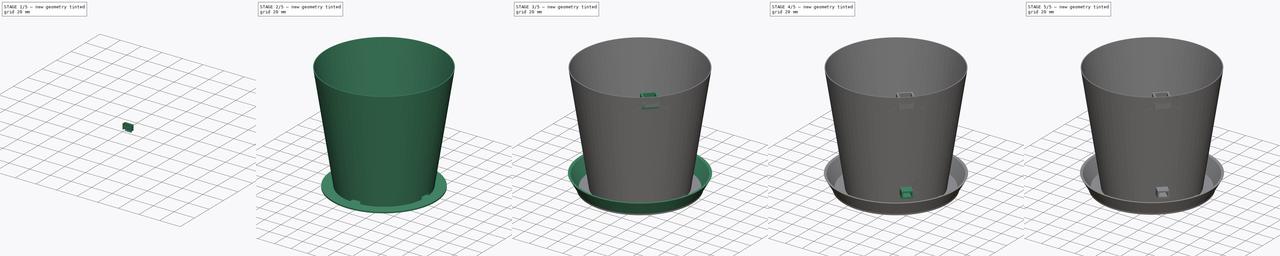
[diagram: build sequence overview — one tinted view per stage of 5, left to right]
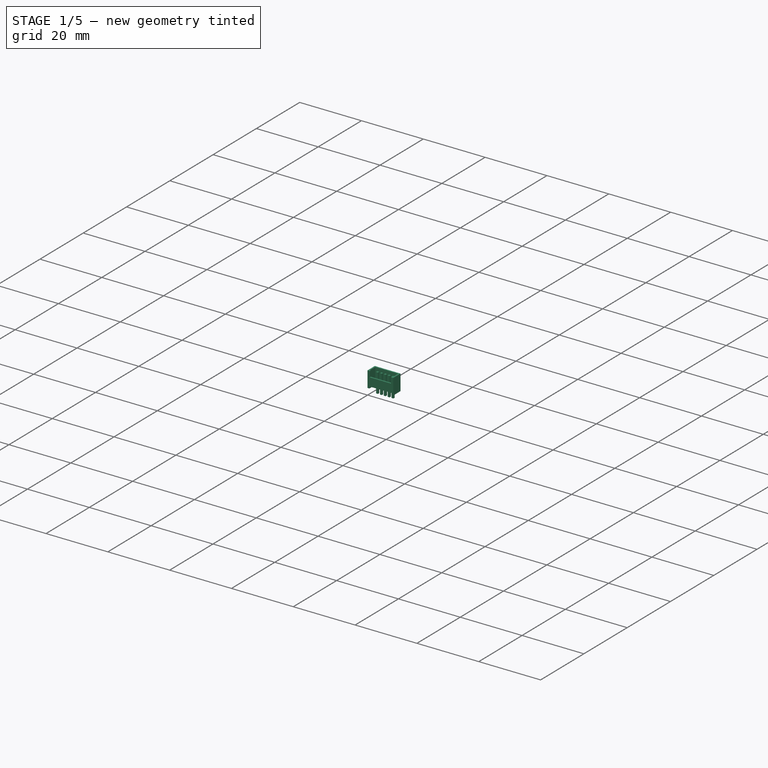
[diagram: stage 1 of 5 — iso view after this stage's code; geometry added in this stage tinted green]
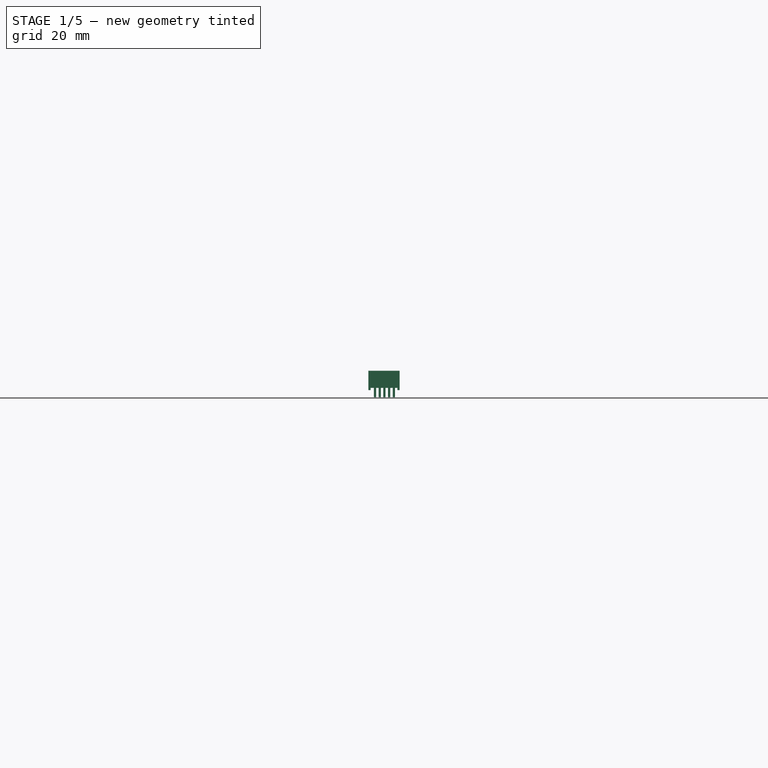
[diagram: stage 1 of 5 — front view after this stage's code; geometry added in this stage tinted green]
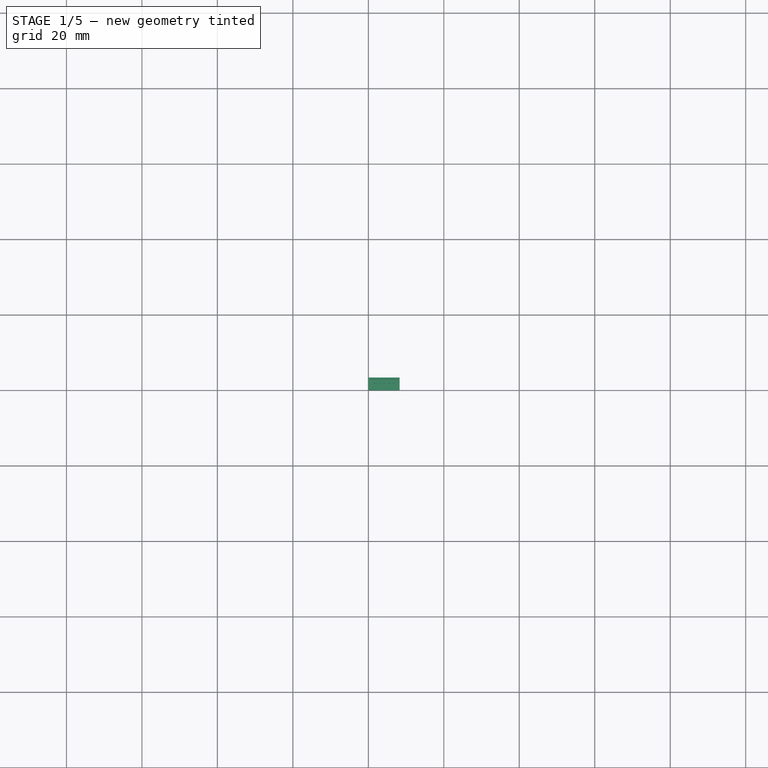
[diagram: stage 1 of 5 — top view after this stage's code; geometry added in this stage tinted green]
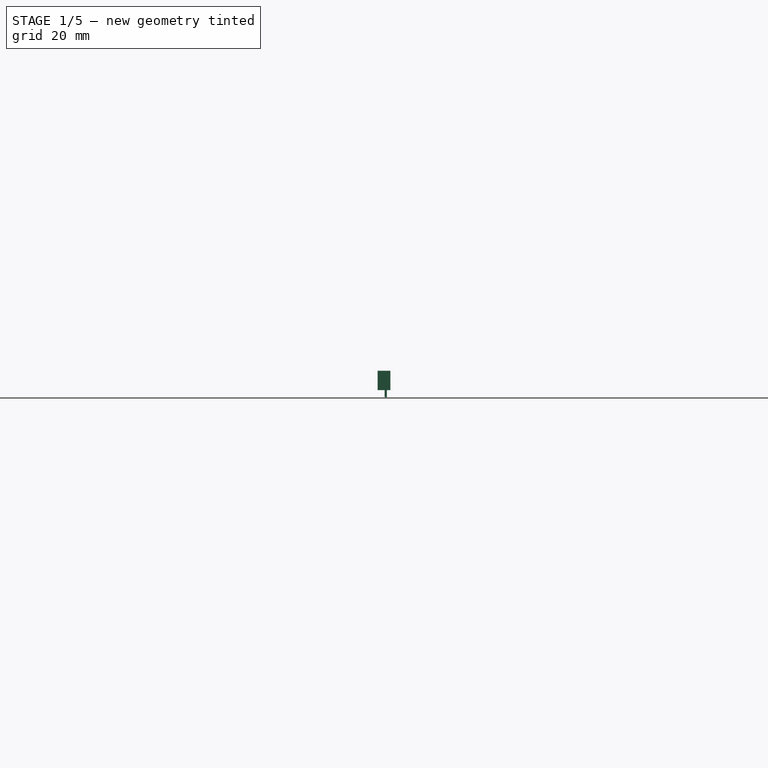
[diagram: stage 1 of 5 — right view after this stage's code; geometry added in this stage tinted green]
FCSTD DOCUMENT  (FreeCAD 0.19R19323 (Git))
Label: Vaso
License: All rights reserved
LicenseURL: http://en.wikipedia.org/wiki/All_rights_reserved
objects: Sketcher::SketchObject×31, PartDesign::Pad×15, PartDesign::Pocket×6, PartDesign::Fillet×5, PartDesign::AdditiveLoft×3, PartDesign::Body×3, PartDesign::Thickness×1, PartDesign::Groove×1, PartDesign::ShapeBinder×1, PartDesign::AdditivePipe×1
note: 93 computed .brp shape members not serialized (recipe doc carries the construction recipe); baked Part::Feature solids carry a one-line shape summary decoded from their .brp

FEATURE [PartDesign::Body] Body001  label="USB"
  Group = -> [Sketch042,Pad020,Thickness,Sketch043,Pad001,Sketch044,Pad002,Sketch003,Pad003]
  Origin = -> Origin001
  Placement = pos=(37.1001,-41.6658,24) rot=(0.862856,0.357407,0.357407;1.71777rad)
  Tip = -> Pad003
FEATURE [Sketcher::SketchObject] Sketch052
  MapMode = 5
  Support = -> [XY_Plane002]
  sketch-geometry (4):
    g0: LineSegment StartX=0 StartY=0 StartZ=0 EndX=8.3 EndY=0 EndZ=0
    g1: LineSegment StartX=8.3 StartY=0 StartZ=0 EndX=8.3 EndY=3.35 EndZ=0
    g2: LineSegment StartX=8.3 StartY=3.35 StartZ=0 EndX=0 EndY=3.35 EndZ=0
    g3: LineSegment StartX=0 StartY=3.35 StartZ=0 EndX=0 EndY=0 EndZ=0
  constraints (11):
    c: Coincident(g0,g1)
    c: Coincident(g1,g2)
    c: Coincident(g2,g3)
    c: Coincident(g3,g0)
    c: Horizontal(g0)
    c: Horizontal(g2)
    c: Vertical(g1)
    c: Vertical(g3)
    c: Coincident(g0,g-1)
    c: DistanceX(g2,g2) = 8.3
    c: DistanceY(g1,g1) = 3.35
FEATURE [PartDesign::Pad] Pad022
  Length = 4.55
  Length2 = 100
  Profile = -> Sketch052
  Type = 0
FEATURE [Sketcher::SketchObject] Sketch053
  ExternalGeometry = -> [Pad022]
  MapMode = 5
  Placement = pos=(0,0,0) rot=(1,0,0;3.14159rad)
  Support = -> [Pad022]
  sketch-geometry (8):
    g0: LineSegment StartX=0 StartY=0 StartZ=0 EndX=0.6 EndY=0 EndZ=0
    g1: LineSegment StartX=0.6 StartY=0 StartZ=0 EndX=0.6 EndY=-3.35 EndZ=0
    g2: LineSegment StartX=0.6 StartY=-3.35 StartZ=0 EndX=0 EndY=-3.35 EndZ=0
    g3: LineSegment StartX=0 StartY=-3.35 StartZ=0 EndX=0 EndY=0 EndZ=0
    g4: LineSegment StartX=8.3 StartY=0 StartZ=0 EndX=7.7 EndY=0 EndZ=0
    g5: LineSegment StartX=7.7 StartY=0 StartZ=0 EndX=7.7 EndY=-3.35 EndZ=0
    g6: LineSegment StartX=7.7 StartY=-3.35 StartZ=0 EndX=8.3 EndY=-3.35 EndZ=0
    g7: LineSegment StartX=8.3 StartY=-3.35 StartZ=0 EndX=8.3 EndY=0 EndZ=0
  constraints (20):
    c: Coincident(g0,g1)
    c: Coincident(g1,g2)
    c: Coincident(g2,g3)
    c: Coincident(g3,g0)
    c: Horizontal(g0)
    c: Horizontal(g2)
    c: Vertical(g1)
    c: Coincident(g0,g-1)
    c: Coincident(g4,g5)
    c: Coincident(g5,g6)
    c: Coincident(g6,g7)
    c: Coincident(g7,g4)
    c: Horizontal(g4)
    c: Horizontal(g6)
    c: Vertical(g5)
    c: Coincident(g4,g-4)
    c: Coincident(g6,g-4)
    c: Coincident(g2,g-3)
    c: DistanceX(g4,g4) = 0.6
    c: Equal(g0,g4)
FEATURE [PartDesign::Pad] Pad023
  BaseFeature = -> Pad022
  Length = 0.6
  Length2 = 100
  Profile = -> Sketch053
  Type = 0
FEATURE [Sketcher::SketchObject] Sketch054
  ExternalGeometry = -> [Pad023]
  MapMode = 5
  Placement = pos=(0,0,4.55) rot=(0,0,1;0rad)
  Support = -> [Pad023]
  sketch-geometry (4):
    g0: LineSegment StartX=0.45 StartY=2.9 StartZ=0 EndX=7.85 EndY=2.9 EndZ=0
    g1: LineSegment StartX=7.85 StartY=2.9 StartZ=0 EndX=7.85 EndY=0.45 EndZ=0
    g2: LineSegment StartX=7.85 StartY=0.45 StartZ=0 EndX=0.45 EndY=0.45 EndZ=0
    g3: LineSegment StartX=0.45 StartY=0.45 StartZ=0 EndX=0.45 EndY=2.9 EndZ=0
  constraints (12):
    c: Coincident(g0,g1)
    c: Coincident(g1,g2)
    c: Coincident(g2,g3)
    c: Coincident(g3,g0)
    c: Horizontal(g0)
    c: Horizontal(g2)
    c: Vertical(g1)
    c: Vertical(g3)
    c: DistanceX(g-3,g0) = 0.45
    c: DistanceX(g1,g-4) = 0.45
    c: DistanceY(g0,g-4) = 0.45
    c: DistanceY(g-1,g2) = 0.45
FEATURE [PartDesign::Pocket] Pocket006
  BaseFeature = -> Pad023
  Length = 3.9
  Length2 = 100
  Profile = -> Sketch054
  Type = 0
FEATURE [Sketcher::SketchObject] Sketch055
  ExternalGeometry = -> [Pocket006]
  MapMode = 5
  Placement = pos=(0,0,0) rot=(1,0,0;1.5708rad)
  Support = -> [Pocket006]
  sketch-geometry (4):
    g0: LineSegment StartX=0.7 StartY=4.55 StartZ=0 EndX=7.6 EndY=4.55 EndZ=0
    g1: LineSegment StartX=7.6 StartY=4.55 StartZ=0 EndX=7.6 EndY=2.7 EndZ=0
    g2: LineSegment StartX=7.6 StartY=2.7 StartZ=0 EndX=0.7 EndY=2.7 EndZ=0
    g3: LineSegment StartX=0.7 StartY=2.7 StartZ=0 EndX=0.7 EndY=4.55 EndZ=0
  constraints (12):
    c: Coincident(g0,g1)
    c: Coincident(g1,g2)
    c: Coincident(g2,g3)
    c: Coincident(g3,g0)
    c: Horizontal(g0)
    c: Horizontal(g2)
    c: Vertical(g1)
    c: Vertical(g3)
    c: PointOnObject(g0,g-4)
    c: DistanceX(g0,g-5) = 0.7
    c: DistanceX(g-4,g0) = 0.7
    c: DistanceY(g-1,g2) = 2.7
FEATURE [PartDesign::Pocket] Pocket007
  BaseFeature = -> Pocket006
  Length = 0
  Length2 = 100
  Profile = -> Sketch055
  Type = 3
  UpToFace = -> Pocket006 [Face16]
FEATURE [Sketcher::SketchObject] Sketch004
  ExternalGeometry = -> [Pocket007]
  MapMode = 5
  Placement = pos=(0,0,0) rot=(1,0,0;3.14159rad)
  Support = -> [Pocket007]
  sketch-geometry (26):
    g0: LineSegment StartX=1.46363 StartY=-1.85 StartZ=0 EndX=2.06363 EndY=-1.85 EndZ=0
    g1: LineSegment StartX=2.06363 StartY=-1.85 StartZ=0 EndX=2.06363 EndY=-2.45 EndZ=0
    g2: LineSegment StartX=2.06363 StartY=-2.45 StartZ=0 EndX=1.46363 EndY=-2.45 EndZ=0
    g3: LineSegment StartX=1.46363 StartY=-2.45 StartZ=0 EndX=1.46363 EndY=-1.85 EndZ=0
    g4: LineSegment StartX=2.71363 StartY=-1.85 StartZ=0 EndX=3.31363 EndY=-1.85 EndZ=0
    g5: LineSegment StartX=3.31363 StartY=-1.85 StartZ=0 EndX=3.31363 EndY=-2.45 EndZ=0
    g6: LineSegment StartX=3.31363 StartY=-2.45 StartZ=0 EndX=2.71363 EndY=-2.45 EndZ=0
    g7: LineSegment StartX=2.71363 StartY=-2.45 StartZ=0 EndX=2.71363 EndY=-1.85 EndZ=0
    g8: LineSegment StartX=3.96363 StartY=-1.85 StartZ=0 EndX=4.56363 EndY=-1.85 EndZ=0
    g9: LineSegment StartX=4.56363 StartY=-1.85 StartZ=0 EndX=4.56363 EndY=-2.45 EndZ=0
    g10: LineSegment StartX=4.56363 StartY=-2.45 StartZ=0 EndX=3.96363 EndY=-2.45 EndZ=0
    g11: LineSegment StartX=3.96363 StartY=-2.45 StartZ=0 EndX=3.96363 EndY=-1.85 EndZ=0
    g12: LineSegment StartX=5.21363 StartY=-1.85 StartZ=0 EndX=5.81363 EndY=-1.85 EndZ=0
    g13: LineSegment StartX=5.81363 StartY=-1.85 StartZ=0 EndX=5.81363 EndY=-2.45 EndZ=0
    g14: LineSegment StartX=5.81363 StartY=-2.45 StartZ=0 EndX=5.21363 EndY=-2.45 EndZ=0
    g15: LineSegment StartX=5.21363 StartY=-2.45 StartZ=0 EndX=5.21363 EndY=-1.85 EndZ=0
    g16: LineSegment StartX=6.46363 StartY=-1.85 StartZ=0 EndX=7.06363 EndY=-1.85 EndZ=0
    g17: LineSegment StartX=7.06363 StartY=-1.85 StartZ=0 EndX=7.06363 EndY=-2.45 EndZ=0
    g18: LineSegment StartX=7.06363 StartY=-2.45 StartZ=0 EndX=6.46363 EndY=-2.45 EndZ=0
    g19: LineSegment StartX=6.46363 StartY=-2.45 StartZ=0 EndX=6.46363 EndY=-1.85 EndZ=0
    g20: LineSegment [constr] StartX=2.06363 StartY=-1.85 StartZ=0 EndX=2.71363 EndY=-1.85 EndZ=0
    g21: LineSegment [constr] StartX=3.31363 StartY=-1.85 StartZ=0 EndX=3.96363 EndY=-1.85 EndZ=0
    g22: LineSegment [constr] StartX=4.56363 StartY=-1.85 StartZ=0 EndX=5.21363 EndY=-1.85 EndZ=0
    g23: LineSegment [constr] StartX=5.81363 StartY=-1.85 StartZ=0 EndX=6.46363 EndY=-1.85 EndZ=0
    g24: LineSegment [constr] StartX=1.46363 StartY=-1.85 StartZ=0 EndX=0.6 EndY=-1.85 EndZ=0
    g25: LineSegment [constr] StartX=7.06363 StartY=-1.85 StartZ=0 EndX=7.92726 EndY=-1.85 EndZ=0
  constraints (73):
    c: Coincident(g0,g1)
    c: Coincident(g1,g2)
    c: Coincident(g2,g3)
    c: Coincident(g3,g0)
    c: Horizontal(g0)
    c: Horizontal(g2)
    c: Vertical(g1)
    c: Vertical(g3)
    c: Coincident(g4,g5)
    c: Coincident(g5,g6)
    c: Coincident(g6,g7)
    c: Coincident(g7,g4)
    c: Horizontal(g4)
    c: Horizontal(g6)
    c: Vertical(g5)
    c: Vertical(g7)
    c: Coincident(g8,g9)
    c: Coincident(g9,g10)
    c: Coincident(g10,g11)
    c: Coincident(g11,g8)
    c: Horizontal(g8)
    c: Horizontal(g10)
    c: Vertical(g9)
    c: Vertical(g11)
    c: Coincident(g12,g13)
    c: Coincident(g13,g14)
    c: Coincident(g14,g15)
    c: Coincident(g15,g12)
    c: Horizontal(g12)
    c: Horizontal(g14)
    c: Vertical(g13)
    c: Vertical(g15)
    c: Coincident(g16,g17)
    c: Coincident(g17,g18)
    c: Coincident(g18,g19)
    c: Coincident(g19,g16)
    c: Horizontal(g16)
    c: Horizontal(g18)
    c: Vertical(g17)
    c: Vertical(g19)
    c: Coincident(g20,g0)
    c: Coincident(g20,g4)
    c: Coincident(g21,g4)
    c: Coincident(g21,g8)
    c: Coincident(g22,g8)
    c: Coincident(g22,g12)
    c: Coincident(g23,g12)
    c: Coincident(g23,g16)
    c: Horizontal(g23)
    c: Horizontal(g22)
    c: Horizontal(g21)
    c: Horizontal(g20)
    c: Equal(g0,g1)
    c: Equal(g1,g4)
    c: Equal(g4,g5)
    c: Equal(g5,g8)
    c: Equal(g8,g9)
    c: Equal(g9,g12)
    c: Equal(g12,g13)
    c: Equal(g13,g16)
    c: Equal(g16,g17)
    c: DistanceX(g0,g0) = 0.6
    c: DistanceX(g2,g6) = 1.25
    c: Equal(g22,g21)
    c: Equal(g21,g20)
    c: Coincident(g24,g0)
    c: PointOnObject(g24,g-3)
    c: Horizontal(g24)
    c: Coincident(g25,g16)
    c: Horizontal(g25)
    c: Equal(g23,g22)
    c: Equal(g25,g24)
    c: DistanceY(g-3,g0) = 1.5
FEATURE [PartDesign::Pad] Pad024
  BaseFeature = -> Pocket007
  Length = 2.5
  Length2 = 100
  Profile = -> Sketch004
  Type = 0
FEATURE [Sketcher::SketchObject] Sketch005
  ExternalGeometry = -> [Pad024]
  MapMode = 5
  Placement = pos=(0,0,0) rot=(1,0,0;3.14159rad)
  Support = -> [Pad024]
  sketch-geometry (20):
    g0: LineSegment StartX=1.46363 StartY=-1.85 StartZ=0 EndX=2.06363 EndY=-1.85 EndZ=0
    g1: LineSegment StartX=2.06363 StartY=-1.85 StartZ=0 EndX=2.06363 EndY=-2.45 EndZ=0
    g2: LineSegment StartX=2.06363 StartY=-2.45 StartZ=0 EndX=1.46363 EndY=-2.45 EndZ=0
    g3: LineSegment StartX=1.46363 StartY=-2.45 StartZ=0 EndX=1.46363 EndY=-1.85 EndZ=0
    g4: LineSegment StartX=2.71363 StartY=-1.85 StartZ=0 EndX=3.31363 EndY=-1.85 EndZ=0
    g5: LineSegment StartX=3.31363 StartY=-1.85 StartZ=0 EndX=3.31363 EndY=-2.45 EndZ=0
    g6: LineSegment StartX=3.31363 StartY=-2.45 StartZ=0 EndX=2.71363 EndY=-2.45 EndZ=0
    g7: LineSegment StartX=2.71363 StartY=-2.45 StartZ=0 EndX=2.71363 EndY=-1.85 EndZ=0
    g8: LineSegment StartX=3.96363 StartY=-1.85 StartZ=0 EndX=4.56363 EndY=-1.85 EndZ=0
    g9: LineSegment StartX=4.56363 StartY=-1.85 StartZ=0 EndX=4.56363 EndY=-2.45 EndZ=0
    g10: LineSegment StartX=4.56363 StartY=-2.45 StartZ=0 EndX=3.96363 EndY=-2.45 EndZ=0
    g11: LineSegment StartX=3.96363 StartY=-2.45 StartZ=0 EndX=3.96363 EndY=-1.85 EndZ=0
    g12: LineSegment StartX=5.21363 StartY=-1.85 StartZ=0 EndX=5.81363 EndY=-1.85 EndZ=0
    g13: LineSegment StartX=5.81363 StartY=-1.85 StartZ=0 EndX=5.81363 EndY=-2.45 EndZ=0
    g14: LineSegment StartX=5.81363 StartY=-2.45 StartZ=0 EndX=5.21363 EndY=-2.45 EndZ=0
    g15: LineSegment StartX=5.21363 StartY=-2.45 StartZ=0 EndX=5.21363 EndY=-1.85 EndZ=0
    g16: LineSegment StartX=6.46363 StartY=-1.85 StartZ=0 EndX=7.06363 EndY=-1.85 EndZ=0
    g17: LineSegment StartX=7.06363 StartY=-1.85 StartZ=0 EndX=7.06363 EndY=-2.45 EndZ=0
    g18: LineSegment StartX=7.06363 StartY=-2.45 StartZ=0 EndX=6.46363 EndY=-2.45 EndZ=0
    g19: LineSegment StartX=6.46363 StartY=-2.45 StartZ=0 EndX=6.46363 EndY=-1.85 EndZ=0
  constraints (50):
    c: Coincident(g0,g1)
    c: Coincident(g1,g2)
    c: Coincident(g2,g3)
    c: Coincident(g3,g0)
    c: Horizontal(g0)
    c: Horizontal(g2)
    c: Vertical(g1)
    c: Vertical(g3)
    c: Coincident(g0,g-3)
    c: Coincident(g1,g-4)
    c: Coincident(g4,g5)
    c: Coincident(g5,g6)
    c: Coincident(g6,g7)
    c: Coincident(g7,g4)
    c: Horizontal(g4)
    c: Horizontal(g6)
    c: Vertical(g5)
    c: Vertical(g7)
    c: Coincident(g4,g-5)
    c: Coincident(g5,g-6)
    c: Coincident(g8,g9)
    c: Coincident(g9,g10)
    c: Coincident(g10,g11)
    c: Coincident(g11,g8)
    c: Horizontal(g8)
    c: Horizontal(g10)
    c: Vertical(g9)
    c: Vertical(g11)
    c: Coincident(g8,g-7)
    c: Coincident(g9,g-8)
    c: Coincident(g12,g13)
    c: Coincident(g13,g14)
    c: Coincident(g14,g15)
    c: Coincident(g15,g12)
    c: Horizontal(g12)
    c: Horizontal(g14)
    c: Vertical(g13)
    c: Vertical(g15)
    c: Coincident(g12,g-9)
    c: Coincident(g13,g-10)
    c: Coincident(g16,g17)
    c: Coincident(g17,g18)
    c: Coincident(g18,g19)
    c: Coincident(g19,g16)
    c: Horizontal(g16)
    c: Horizontal(g18)
    c: Vertical(g17)
    c: Vertical(g19)
    c: Coincident(g16,g-11)
    c: Coincident(g17,g-12)
FEATURE [PartDesign::Pad] Pad025
  BaseFeature = -> Pad024
  Length = 3.75
  Length2 = 100
  Profile = -> Sketch005
  Reversed = true
  Type = 0
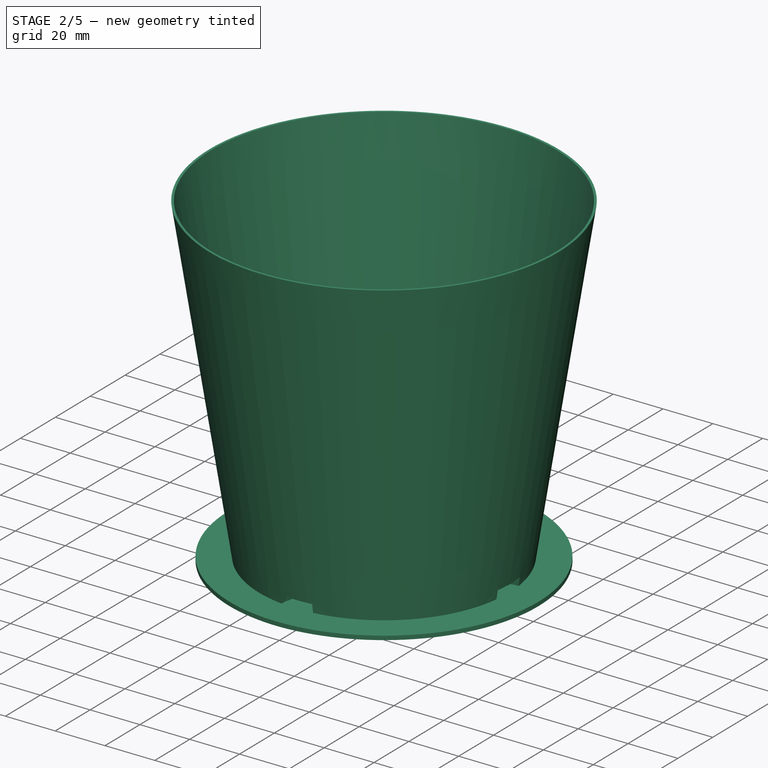
[diagram: stage 2 of 5 — iso view after this stage's code; geometry added in this stage tinted green]
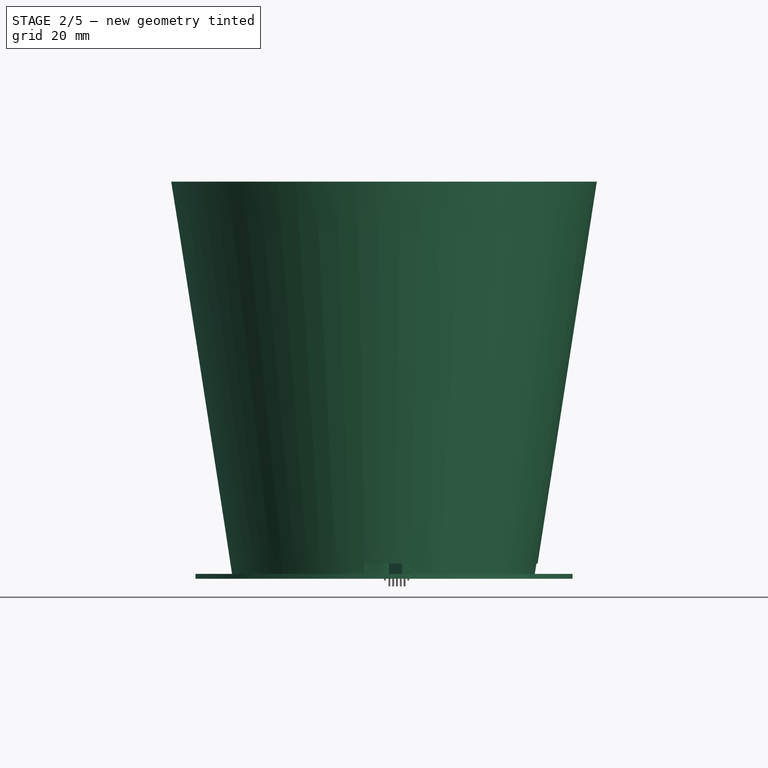
[diagram: stage 2 of 5 — front view after this stage's code; geometry added in this stage tinted green]
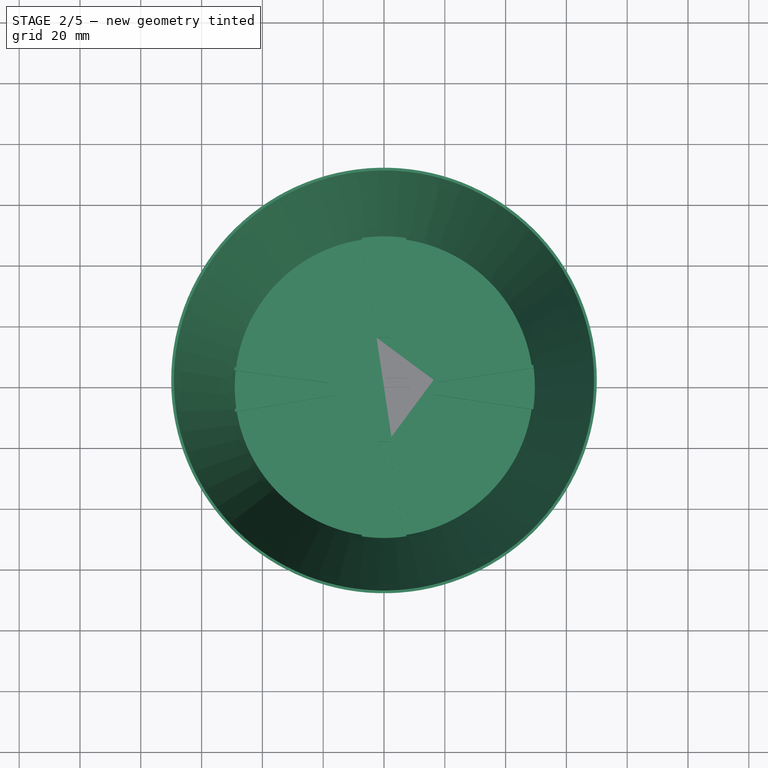
[diagram: stage 2 of 5 — top view after this stage's code; geometry added in this stage tinted green]
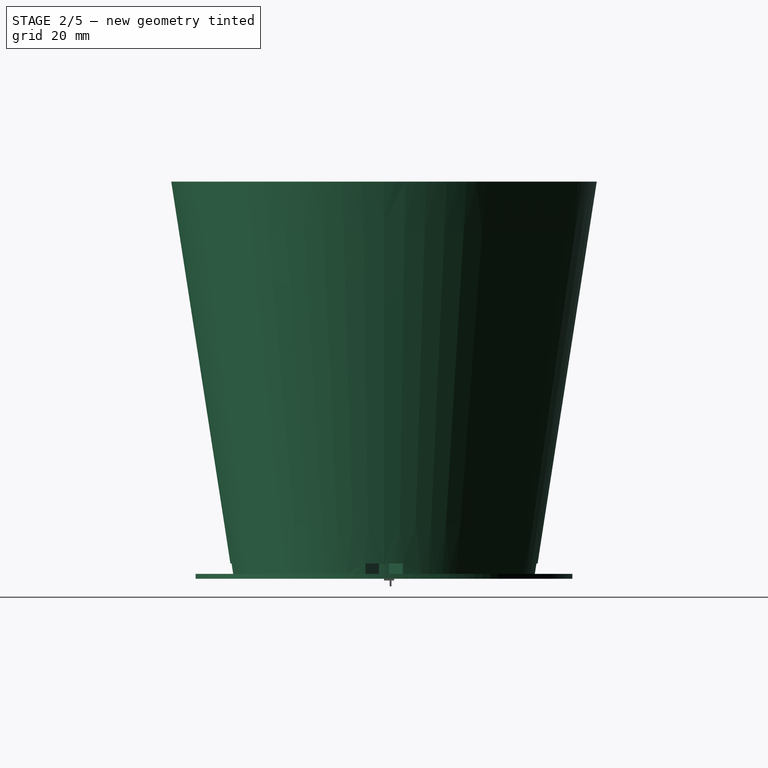
[diagram: stage 2 of 5 — right view after this stage's code; geometry added in this stage tinted green]
FEATURE [Sketcher::SketchObject] Sketch
  MapMode = 5
  Support = -> [XY_Plane]
  sketch-geometry (1):
    g0: Circle CenterX=0 CenterY=0 CenterZ=0 NormalX=0 NormalY=0 NormalZ=1 AngleXU=0 Radius=62
  constraints (2):
    c: Coincident(g0,g-1)
    c: Radius(g0) = 62
FEATURE [PartDesign::Pad] Pad
  Length = 1.6
  Length2 = 100
  Profile = -> Sketch
  Type = 0
FEATURE [Sketcher::SketchObject] Sketch001
  MapMode = 5
  Placement = pos=(0,0,1.6) rot=(0,0,1;0rad)
  Support = -> [Pad]
  sketch-geometry (2):
    g0: Circle CenterX=0 CenterY=0 CenterZ=0 NormalX=0 NormalY=0 NormalZ=1 AngleXU=0 Radius=60
    g1: Circle CenterX=0 CenterY=0 CenterZ=0 NormalX=0 NormalY=0 NormalZ=1 AngleXU=0 Radius=62
  constraints (4):
    c: Coincident(g0,g-1)
    c: Coincident(g1,g0)
    c: Radius(g0) = 60
    c: Radius(g1) = 62
FEATURE [Sketcher::SketchObject] Sketch002
  AttachmentOffset = pos=(0,0,15) rot=(0,0,1;0rad)
  MapMode = 5
  Placement = pos=(0,0,16.6) rot=(0,0,1;0rad)
  Support = -> [Pad]
  sketch-geometry (2):
    g0: Circle CenterX=0 CenterY=0 CenterZ=0 NormalX=0 NormalY=0 NormalZ=1 AngleXU=0 Radius=68
    g1: Circle CenterX=0 CenterY=0 CenterZ=0 NormalX=0 NormalY=0 NormalZ=1 AngleXU=0 Radius=70.6
  constraints (4):
    c: Coincident(g0,g-1)
    c: Coincident(g1,g0)
    c: Radius(g1) = 70.6
    c: Radius(g0) = 68
FEATURE [Sketcher::SketchObject] Sketch018
  MapMode = 5
  Placement = pos=(0,0,1.6) rot=(0,0,1;0rad)
  sketch-geometry (2):
    g0: Circle CenterX=0 CenterY=0 CenterZ=0 NormalX=0 NormalY=0 NormalZ=1 AngleXU=0 Radius=50
    g1: Circle CenterX=0 CenterY=0 CenterZ=0 NormalX=0 NormalY=0 NormalZ=1 AngleXU=0 Radius=49.1
  constraints (4):
    c: Coincident(g0,g-1)
    c: Radius(g0) = 50
    c: Coincident(g1,g0)
    c: Radius(g1) = 49.1
FEATURE [Sketcher::SketchObject] Sketch019
  AttachmentOffset = pos=(0,0,110) rot=(0,0,1;0rad)
  MapMode = 5
  Placement = pos=(0,0,130.6) rot=(0,0,1;0rad)
  sketch-geometry (2):
    g0: Circle CenterX=0 CenterY=0 CenterZ=0 NormalX=0 NormalY=0 NormalZ=1 AngleXU=0 Radius=70
    g1: Circle CenterX=0 CenterY=0 CenterZ=0 NormalX=0 NormalY=0 NormalZ=1 AngleXU=0 Radius=69.1
  constraints (4):
    c: Coincident(g0,g-1)
    c: Coincident(g1,g0)
    c: Radius(g1) = 69.1
    c: Radius(g0) = 70
FEATURE [PartDesign::AdditiveLoft] AdditiveLoft001
  BaseFeature = -> Pad
  Closed = false
  Profile = -> Sketch018
  Ruled = false
  Sections = -> [Sketch019]
FEATURE [Sketcher::SketchObject] Sketch021
  AttachmentOffset = pos=(0,0,-50) rot=(0,0,1;0rad)
  MapMode = 5
  Placement = pos=(0,0,51.6) rot=(1,0,0;3.14159rad)
  sketch-geometry (2):
    g0: Circle CenterX=0 CenterY=0 CenterZ=0 NormalX=0 NormalY=0 NormalZ=1 AngleXU=0 Radius=2
    g1: Circle CenterX=0 CenterY=0 CenterZ=0 NormalX=0 NormalY=0 NormalZ=1 AngleXU=0 Radius=3
  constraints (4):
    c: Coincident(g0,g-1)
    c: Coincident(g1,g0)
    c: Radius(g1) = 3
    c: Radius(g0) = 2
FEATURE [Sketcher::SketchObject] Sketch022
  AttachmentOffset = pos=(0,0,-100) rot=(0,0,1;0rad)
  MapMode = 5
  Placement = pos=(0,0,101.6) rot=(1,0,0;3.14159rad)
  sketch-geometry (2):
    g0: Circle CenterX=0 CenterY=0 CenterZ=0 NormalX=0 NormalY=0 NormalZ=1 AngleXU=0 Radius=2
    g1: Circle CenterX=0 CenterY=0 CenterZ=0 NormalX=0 NormalY=0 NormalZ=1 AngleXU=0 Radius=2.8
  constraints (4):
    c: Coincident(g0,g-1)
    c: Coincident(g1,g0)
    c: Radius(g0) = 2
    c: Radius(g1) = 2.8
FEATURE [PartDesign::AdditiveLoft] AdditiveLoft002
  BaseFeature = -> AdditiveLoft001
  Closed = false
  Profile = -> Sketch021
  Ruled = false
  Sections = -> [Sketch022]
FEATURE [Sketcher::SketchObject] Sketch026
  ExternalGeometry = -> [Sketch018]
  MapMode = 5
  Placement = pos=(0,0,1) rot=(1,0,0;3.14159rad)
  sketch-geometry (59):
    g0: LineSegment [constr] StartX=0 StartY=0 StartZ=0 EndX=-7.39047 EndY=-49.4508 EndZ=0
    g1: LineSegment [constr] StartX=7.39047 StartY=-49.4508 StartZ=0 EndX=-9e-16 EndY=0 EndZ=0
    g2: LineSegment [constr] StartX=49.4508 StartY=-7.39047 StartZ=0 EndX=0 EndY=0 EndZ=0
    g3: LineSegment [constr] StartX=49.4508 StartY=7.39047 StartZ=0 EndX=0 EndY=0 EndZ=0
    g4: LineSegment [constr] StartX=7.39047 StartY=49.4508 StartZ=0 EndX=9e-16 EndY=0 EndZ=0
    g5: LineSegment [constr] StartX=-7.39047 StartY=49.4508 StartZ=0 EndX=0 EndY=0 EndZ=0
    g6: Circle [constr] CenterX=0 CenterY=0 CenterZ=0 NormalX=0 NormalY=0 NormalZ=1 AngleXU=0 Radius=7
    g7: LineSegment [constr] StartX=-49.5634 StartY=-6.59349 StartZ=0 EndX=0 EndY=0 EndZ=0
    g8: LineSegment [constr] StartX=-49.3254 StartY=8.18553 StartZ=0 EndX=0 EndY=0 EndZ=0
    g9: LineSegment [constr] StartX=6.40003 StartY=-49.5887 StartZ=0 EndX=-9e-16 EndY=-6.92311 EndZ=0
    g10: LineSegment [constr] StartX=-6.40003 StartY=-49.5887 StartZ=0 EndX=-9e-16 EndY=-6.92311 EndZ=0
    g11: LineSegment [constr] StartX=49.5887 StartY=6.40003 StartZ=0 EndX=6.92311 EndY=0 EndZ=0
    g12: LineSegment [constr] StartX=49.5887 StartY=-6.40003 StartZ=0 EndX=6.92311 EndY=0 EndZ=0
    g13: LineSegment [constr] StartX=-6.40004 StartY=49.5887 StartZ=0 EndX=0 EndY=6.92311 EndZ=0
    g14: LineSegment [constr] StartX=6.40003 StartY=49.5887 StartZ=0 EndX=0 EndY=6.92311 EndZ=0
    g15: Circle [constr] CenterX=0 CenterY=0 CenterZ=0 NormalX=0 NormalY=0 NormalZ=1 AngleXU=0 Radius=16.5
    g16: LineSegment [constr] StartX=-49.4793 StartY=7.19744 StartZ=0 EndX=-6.92221 EndY=0.111443 EndZ=0
    g17: LineSegment [constr] StartX=-49.6853 StartY=-5.60096 StartZ=0 EndX=-6.92221 EndY=0.111443 EndZ=0
    g18: GeomPoint X=-1.03467 Y=6.92311 Z=0
    g19: GeomPoint X=1.03467 Y=6.92311 Z=0
    g20: GeomPoint X=6.92311 Y=1.03467 Z=0
    g21: GeomPoint X=6.92311 Y=-1.03467 Z=0
    g22: GeomPoint X=1.03467 Y=-6.92311 Z=0
    g23: GeomPoint X=-1.03467 Y=-6.92311 Z=0
    g24: GeomPoint X=-6.93887 Y=-0.923089 Z=0
    g25: GeomPoint X=-6.90556 Y=1.14597 Z=0
    g26: ArcOfCircle CenterX=0 CenterY=0 CenterZ=0 NormalX=0 NormalY=0 NormalZ=1 AngleXU=0 Radius=50 StartAngle=2.97714 EndAngle=2.99714
    g27: ArcOfCircle CenterX=0 CenterY=0 CenterZ=0 NormalX=0 NormalY=0 NormalZ=1 AngleXU=0 Radius=50 StartAngle=3.25385 EndAngle=3.27385
    g28: ArcOfCircle CenterX=0 CenterY=0 CenterZ=0 NormalX=0 NormalY=0 NormalZ=1 AngleXU=0 Radius=50 StartAngle=0.128353 EndAngle=0.148353
    g29: ArcOfCircle CenterX=0 CenterY=0 CenterZ=0 NormalX=0 NormalY=0 NormalZ=1 AngleXU=0 Radius=50 StartAngle=6.13483 EndAngle=6.15483
    g30: ArcOfCircle CenterX=0 CenterY=0 CenterZ=0 NormalX=0 NormalY=0 NormalZ=1 AngleXU=0 Radius=50 StartAngle=4.56404 EndAngle=4.58404
    g31: ArcOfCircle CenterX=0 CenterY=0 CenterZ=0 NormalX=0 NormalY=0 NormalZ=1 AngleXU=0 Radius=50 StartAngle=4.84074 EndAngle=4.86074
    g32: ArcOfCircle CenterX=0 CenterY=0 CenterZ=0 NormalX=0 NormalY=0 NormalZ=1 AngleXU=0 Radius=50 StartAngle=1.69915 EndAngle=1.71915
    g33: ArcOfCircle CenterX=0 CenterY=0 CenterZ=0 NormalX=0 NormalY=0 NormalZ=1 AngleXU=0 Radius=50 StartAngle=1.42244 EndAngle=1.44244
    g34: Circle [constr] CenterX=0 CenterY=0 CenterZ=0 NormalX=0 NormalY=0 NormalZ=1 AngleXU=0 Radius=18
    g35: LineSegment StartX=-49.3254 StartY=8.18553 StartZ=0 EndX=-16.2774 EndY=2.70123 EndZ=0
    g36: LineSegment StartX=-49.4793 StartY=7.19744 StartZ=0 EndX=-17.8953 EndY=1.93853 EndZ=0
    g37: LineSegment StartX=-49.6853 StartY=-5.60096 StartZ=0 EndX=-17.9484 EndY=-1.36147 EndZ=0
    g38: LineSegment StartX=-49.5634 StartY=-6.59349 StartZ=0 EndX=-16.3559 EndY=-2.17585 EndZ=0
    g39: LineSegment StartX=49.4508 StartY=7.39047 StartZ=0 EndX=16.3188 EndY=2.43886 EndZ=0
    g40: LineSegment StartX=49.5887 StartY=6.40003 StartZ=0 EndX=17.9242 EndY=1.65021 EndZ=0
    g41: LineSegment StartX=49.5887 StartY=-6.40003 StartZ=0 EndX=17.9242 EndY=-1.65021 EndZ=0
    g42: LineSegment StartX=49.4508 StartY=-7.39047 StartZ=0 EndX=16.3188 EndY=-2.43886 EndZ=0
    g43: ArcOfCircle CenterX=0 CenterY=0 CenterZ=0 NormalX=0 NormalY=0 NormalZ=1 AngleXU=0 Radius=18 StartAngle=3.03369 EndAngle=3.2173
    g44: ArcOfCircle CenterX=0 CenterY=0 CenterZ=0 NormalX=0 NormalY=0 NormalZ=1 AngleXU=0 Radius=16.5 StartAngle=2.97714 EndAngle=3.27385
    g45: ArcOfCircle CenterX=0 CenterY=0 CenterZ=0 NormalX=0 NormalY=0 NormalZ=1 AngleXU=0 Radius=18 StartAngle=6.19138 EndAngle=6.37499
    g46: ArcOfCircle CenterX=0 CenterY=0 CenterZ=0 NormalX=0 NormalY=0 NormalZ=1 AngleXU=0 Radius=16.5 StartAngle=6.13483 EndAngle=6.43154
    g47: LineSegment StartX=-7.39047 StartY=49.4508 StartZ=0 EndX=-2.43886 EndY=16.3188 EndZ=0
    g48: LineSegment StartX=-6.40004 StartY=49.5887 StartZ=0 EndX=-1.65022 EndY=17.9242 EndZ=0
    g49: LineSegment StartX=6.40003 StartY=49.5887 StartZ=0 EndX=1.65021 EndY=17.9242 EndZ=0
    g50: LineSegment StartX=7.39047 StartY=49.4508 StartZ=0 EndX=2.43886 EndY=16.3188 EndZ=0
    g51: ArcOfCircle CenterX=0 CenterY=0 CenterZ=0 NormalX=0 NormalY=0 NormalZ=1 AngleXU=0 Radius=16.5 StartAngle=1.42244 EndAngle=1.71915
    g52: ArcOfCircle CenterX=0 CenterY=0 CenterZ=0 NormalX=0 NormalY=0 NormalZ=1 AngleXU=0 Radius=18 StartAngle=1.47899 EndAngle=1.6626
    g53: LineSegment StartX=-7.39047 StartY=-49.4508 StartZ=0 EndX=-2.43886 EndY=-16.3188 EndZ=0
    g54: LineSegment StartX=-6.40003 StartY=-49.5887 StartZ=0 EndX=-1.65021 EndY=-17.9242 EndZ=0
    g55: LineSegment StartX=6.40003 StartY=-49.5887 StartZ=0 EndX=1.65021 EndY=-17.9242 EndZ=0
    g56: LineSegment StartX=7.39047 StartY=-49.4508 StartZ=0 EndX=2.43886 EndY=-16.3188 EndZ=0
    g57: ArcOfCircle CenterX=0 CenterY=0 CenterZ=0 NormalX=0 NormalY=0 NormalZ=1 AngleXU=0 Radius=16.5 StartAngle=4.56404 EndAngle=4.86074
    g58: ArcOfCircle CenterX=0 CenterY=0 CenterZ=0 NormalX=0 NormalY=0 NormalZ=1 AngleXU=0 Radius=18 StartAngle=4.62058 EndAngle=4.8042
  constraints (148):
    c: Coincident(g8,g7)
    c: Radius(g6) = 7
    c: Coincident(g10,g9)
    c: Coincident(g12,g11)
    c: Coincident(g14,g13)
    c: Radius(g15) = 16.5
    c: Coincident(g6,g-1)
    c: Coincident(g15,g-1)
    c: PointOnObject(g11,g-3)
    c: PointOnObject(g12,g-3)
    c: PointOnObject(g4,g-3)
    c: PointOnObject(g5,g-3)
    c: PointOnObject(g8,g-3)
    c: PointOnObject(g7,g-3)
    c: PointOnObject(g10,g-3)
    c: PointOnObject(g1,g-3)
    c: Coincident(g4,g-1)
    c: Coincident(g0,g-1)
    c: Coincident(g7,g1)
    c: Coincident(g7,g-1)
    c: Coincident(g2,g-1)
    c: Coincident(g3,g-1)
    c: Coincident(g5,g-1)
    c: Coincident(g17,g16)
    c: Angle(g8,g7) = 0.296706
    c: Angle(g4,g5) = 0.296706
    c: Angle(g2,g3) = 0.296706
    c: Angle(g0,g1) = 0.296706
    c: PointOnObject(g18,g6)
    c: PointOnObject(g19,g6)
    c: PointOnObject(g20,g6)
    c: PointOnObject(g21,g6)
    c: PointOnObject(g22,g6)
    c: PointOnObject(g24,g6)
    c: PointOnObject(g25,g6)
    c: PointOnObject(g25,g8)
    c: PointOnObject(g24,g7)
    c: PointOnObject(g23,g0)
    c: PointOnObject(g22,g1)
    c: PointOnObject(g21,g2)
    c: PointOnObject(g20,g3)
    c: PointOnObject(g19,g4)
    c: PointOnObject(g18,g5)
    c: PointOnObject(g23,g6)
    c: Symmetric(g23,g22,g9)
    c: Symmetric(g25,g24,g16)
    c: Symmetric(g18,g19,g13)
    c: Symmetric(g20,g21,g11)
    c: PointOnObject(g13,g-2)
    c: PointOnObject(g11,g-1)
    c: PointOnObject(g9,g-2)
    c: Distance(g0,g10) = 1
    c: Distance(g11,g3) = 1
    c: Distance(g4,g14) = 1
    c: Distance(g8,g16) = 1
    c: Distance(g17,g7) = 1
    c: Coincident(g26,g-1)
    c: Coincident(g26,g8)
    c: Coincident(g26,g16)
    c: Coincident(g27,g26)
    c: Coincident(g27,g17)
    c: Coincident(g27,g7)
    c: Coincident(g28,g26)
    c: Coincident(g28,g3)
    c: Coincident(g28,g11)
    c: Coincident(g29,g26)
    c: Coincident(g29,g12)
    c: Coincident(g29,g2)
    c: Distance(g29,g29) = 1
    c: Coincident(g30,g26)
    c: Coincident(g30,g0)
    c: Coincident(g30,g10)
    c: Coincident(g31,g26)
    c: Coincident(g31,g9)
    c: Coincident(g31,g1)
    c: Coincident(g32,g26)
    c: Coincident(g32,g5)
    c: Coincident(g32,g13)
    c: Coincident(g33,g26)
    c: Coincident(g33,g14)
    c: Coincident(g33,g4)
    c: Coincident(g34,g26)
    c: Radius(g34) = 18
    c: Coincident(g35,g26)
    c: PointOnObject(g35,g8)
    c: Coincident(g36,g26)
    c: PointOnObject(g36,g16)
    c: Coincident(g37,g27)
    c: PointOnObject(g37,g17)
    c: Coincident(g38,g27)
    c: PointOnObject(g38,g7)
    c: Coincident(g39,g28)
    c: PointOnObject(g39,g3)
    c: Coincident(g40,g28)
    c: PointOnObject(g40,g11)
    c: Coincident(g41,g29)
    c: PointOnObject(g41,g12)
    c: Coincident(g42,g29)
    c: PointOnObject(g42,g2)
    c: PointOnObject(g36,g34)
    c: PointOnObject(g35,g15)
    c: PointOnObject(g41,g34)
    c: PointOnObject(g39,g15)
    c: Coincident(g43,g26)
    c: Coincident(g43,g36)
    c: Coincident(g43,g37)
    c: Coincident(g44,g26)
    c: Coincident(g44,g35)
    c: Coincident(g44,g38)
    c: Coincident(g45,g26)
    c: Coincident(g45,g40)
    c: Coincident(g45,g41)
    c: Coincident(g46,g26)
    c: Coincident(g46,g39)
    c: Coincident(g46,g42)
    c: Coincident(g47,g32)
    c: PointOnObject(g47,g5)
    c: Coincident(g48,g32)
    c: PointOnObject(g48,g13)
    c: Coincident(g49,g33)
    c: PointOnObject(g49,g14)
    c: Coincident(g50,g33)
    c: PointOnObject(g50,g4)
    c: PointOnObject(g47,g15)
    c: PointOnObject(g49,g34)
    c: Coincident(g51,g26)
    c: Coincident(g51,g47)
    c: Coincident(g51,g50)
    c: Coincident(g52,g26)
    c: Coincident(g52,g48)
    c: Coincident(g52,g49)
    c: Coincident(g53,g30)
    c: PointOnObject(g53,g0)
    c: Coincident(g54,g30)
    c: PointOnObject(g54,g10)
    c: Coincident(g55,g31)
    c: PointOnObject(g55,g9)
    c: Coincident(g56,g31)
    c: PointOnObject(g56,g1)
    c: PointOnObject(g56,g15)
    c: PointOnObject(g54,g34)
    c: PointOnObject(g55,g34)
    c: Coincident(g57,g26)
    c: Coincident(g57,g53)
    c: Coincident(g57,g56)
    c: Coincident(g58,g26)
    c: Coincident(g58,g54)
    c: Coincident(g58,g55)
FEATURE [PartDesign::Pad] Pad017
  BaseFeature = -> AdditiveLoft002
  Length = 4
  Length2 = 100
  Profile = -> Sketch026
  Reversed = true
  Type = 0
FEATURE [Sketcher::SketchObject] Sketch027
  AttachmentOffset = pos=(0,0,51) rot=(0,0,1;0rad)
  ExternalGeometry = -> [Pad017]
  MapMode = 5
  Placement = pos=(0,-51,-5.277e-12) rot=(1,0,0;1.5708rad)
  Support = -> [XZ_Plane]
  sketch-geometry (4):
    g0: LineSegment StartX=-6.34472 StartY=5 StartZ=0 EndX=6.26649 EndY=5 EndZ=0
    g1: LineSegment StartX=6.26649 StartY=5 StartZ=0 EndX=6.26649 EndY=1.6 EndZ=0
    g2: LineSegment StartX=6.26649 StartY=1.6 StartZ=0 EndX=-6.34472 EndY=1.6 EndZ=0
    g3: LineSegment StartX=-6.34472 StartY=1.6 StartZ=0 EndX=-6.34472 EndY=5 EndZ=0
  constraints (8):
    c: Coincident(g0,g1)
    c: Coincident(g1,g2)
    c: Coincident(g2,g3)
    c: Coincident(g3,g0)
    c: Horizontal(g0)
    c: Horizontal(g2)
    c: Vertical(g1)
    c: Vertical(g3)
FEATURE [PartDesign::Pocket] Pocket
  BaseFeature = -> Pad017
  Length = 4
  Length2 = 100
  Profile = -> Sketch027
  Type = 0
FEATURE [Sketcher::SketchObject] Sketch028
  AttachmentOffset = pos=(0,0,-50.5) rot=(0,0,1;0rad)
  ExternalGeometry = -> [Pocket]
  MapMode = 5
  Placement = pos=(0,50.5,5.2254e-12) rot=(1,0,0;1.5708rad)
  Support = -> [XZ_Plane]
  sketch-geometry (4):
    g0: LineSegment StartX=-6.34472 StartY=5 StartZ=0 EndX=6.26649 EndY=5 EndZ=0
    g1: LineSegment StartX=6.26649 StartY=5 StartZ=0 EndX=6.26649 EndY=1.6 EndZ=0
    g2: LineSegment StartX=6.26649 StartY=1.6 StartZ=0 EndX=-6.34472 EndY=1.6 EndZ=0
    g3: LineSegment StartX=-6.34472 StartY=1.6 StartZ=0 EndX=-6.34472 EndY=5 EndZ=0
  constraints (10):
    c: Coincident(g0,g1)
    c: Coincident(g1,g2)
    c: Coincident(g2,g3)
    c: Coincident(g3,g0)
    c: Horizontal(g0)
    c: Horizontal(g2)
    c: Vertical(g1)
    c: Vertical(g3)
    c: Coincident(g0,g-4)
    c: Coincident(g1,g-3)
FEATURE [PartDesign::Pocket] Pocket001
  BaseFeature = -> Pocket
  Length = 3
  Length2 = 100
  Profile = -> Sketch028
  Reversed = true
  Type = 0
FEATURE [Sketcher::SketchObject] Sketch029
  AttachmentOffset = pos=(0,0,50.5) rot=(0,0,1;0rad)
  ExternalGeometry = -> [Pocket001]
  MapMode = 5
  Placement = pos=(50.5,-5.702e-12,5.702e-12) rot=(0.57735,0.57735,0.57735;2.0944rad)
  Support = -> [YZ_Plane]
  sketch-geometry (4):
    g0: LineSegment StartX=-6.3447 StartY=5 StartZ=0 EndX=6.26649 EndY=5 EndZ=0
    g1: LineSegment StartX=6.26649 StartY=5 StartZ=0 EndX=6.26649 EndY=1.6 EndZ=0
    g2: LineSegment StartX=6.26649 StartY=1.6 StartZ=0 EndX=-6.3447 EndY=1.6 EndZ=0
    g3: LineSegment StartX=-6.3447 StartY=1.6 StartZ=0 EndX=-6.3447 EndY=5 EndZ=0
  constraints (8):
    c: Coincident(g0,g1)
    c: Coincident(g1,g2)
    c: Coincident(g2,g3)
    c: Coincident(g3,g0)
    c: Horizontal(g0)
    c: Horizontal(g2)
    c: Vertical(g1)
    c: Vertical(g3)
FEATURE [PartDesign::Pocket] Pocket002
  BaseFeature = -> Pocket001
  Length = 3
  Length2 = 100
  Profile = -> Sketch029
  Type = 0
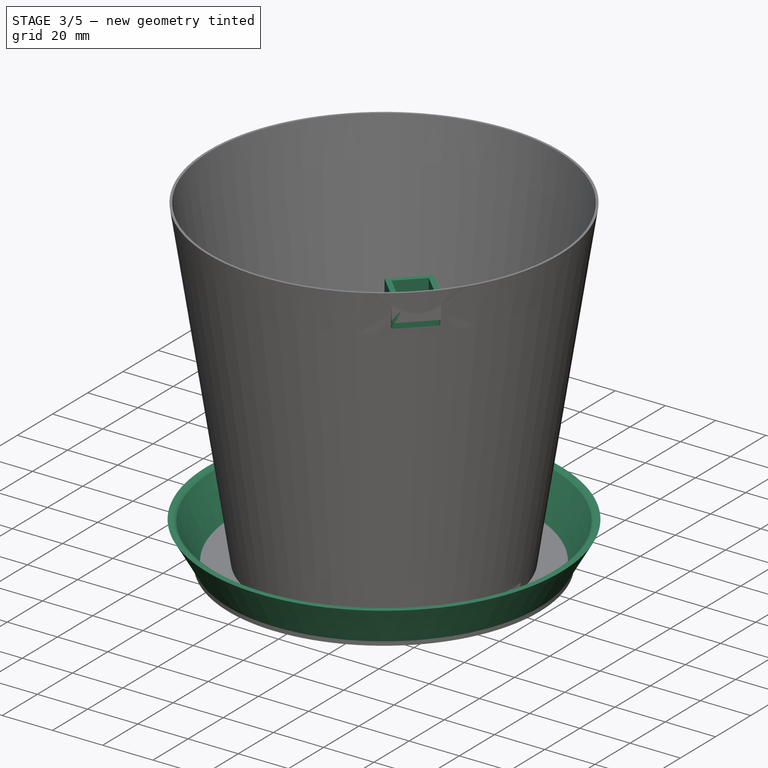
[diagram: stage 3 of 5 — iso view after this stage's code; geometry added in this stage tinted green]
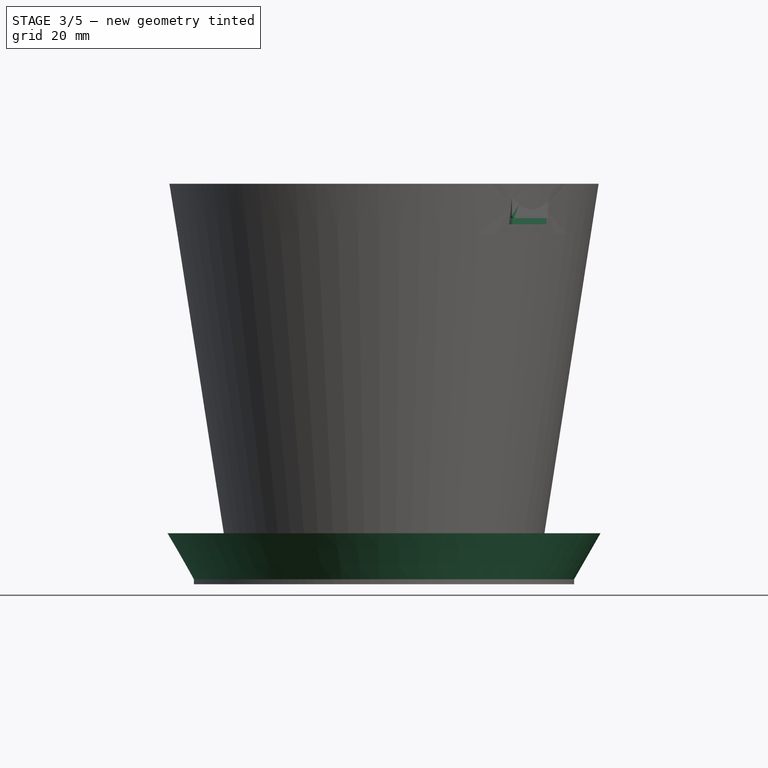
[diagram: stage 3 of 5 — front view after this stage's code; geometry added in this stage tinted green]
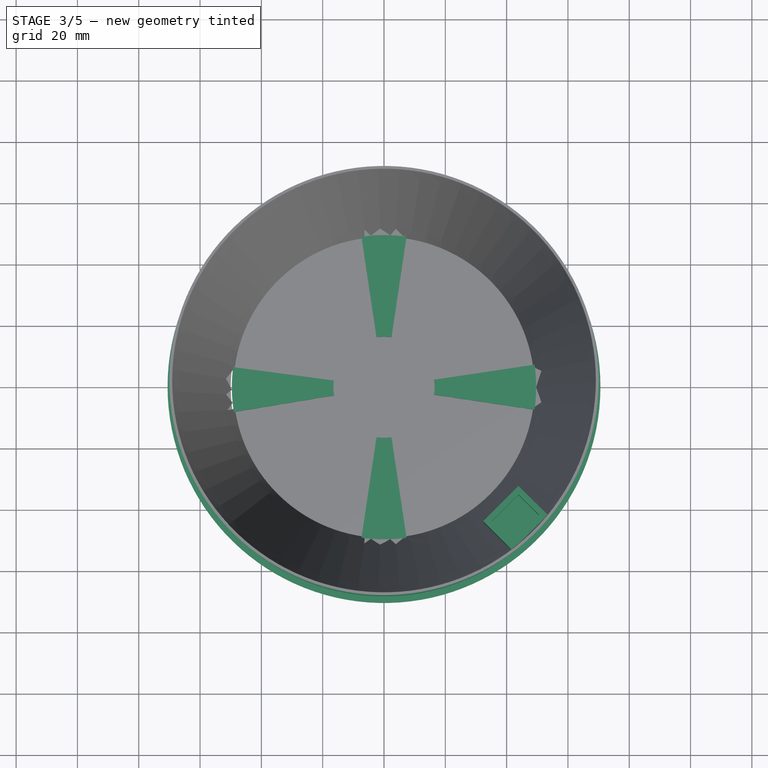
[diagram: stage 3 of 5 — top view after this stage's code; geometry added in this stage tinted green]
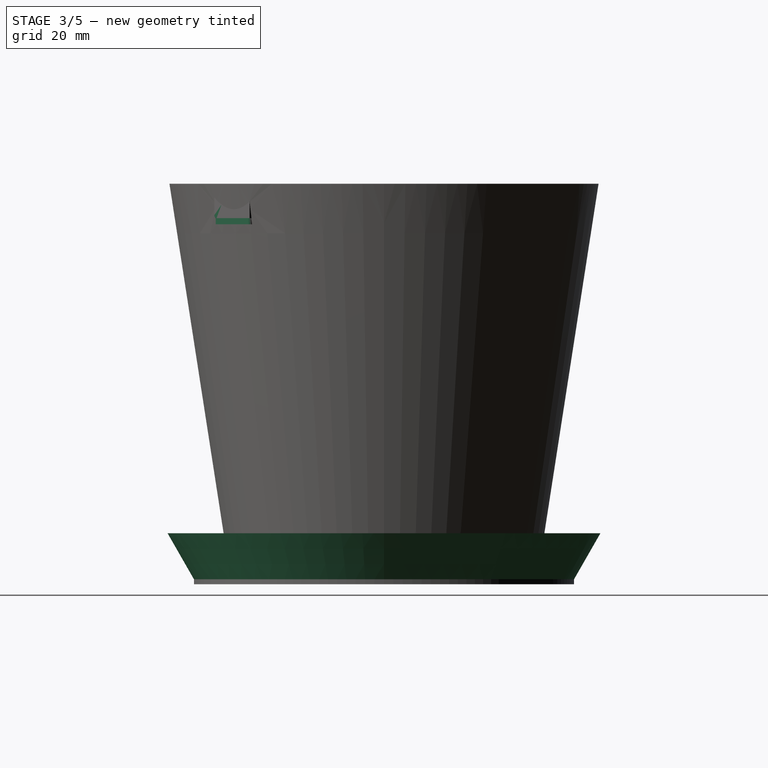
[diagram: stage 3 of 5 — right view after this stage's code; geometry added in this stage tinted green]
FEATURE [PartDesign::Body] Body002  label="Maschio-5Poli-1.25"
  Group = -> [Sketch052,Pad022,Sketch053,Pad023,Sketch054,Pocket006,Sketch055,Pocket007,Sketch004,Pad024,Sketch005,Pad025]
  Origin = -> Origin002
  Placement = pos=(41.05,-48.95,120) rot=(0,0,1;0.785398rad)
  Tip = -> Pad025
FEATURE [Sketcher::SketchObject] Sketch056
  ExternalGeometry = -> [Pocket002]
  MapMode = 5
  Placement = pos=(0,0,5) rot=(0,0,1;0rad)
  Support = -> [Pocket002]
  sketch-geometry (16):
    g0: ArcOfCircle CenterX=-1.79e-14 CenterY=0 CenterZ=0 NormalX=0 NormalY=0 NormalZ=1 AngleXU=0 Radius=16.5 StartAngle=3.00934 EndAngle=3.30604
    g1: ArcOfCircle CenterX=-1.79e-14 CenterY=0 CenterZ=0 NormalX=0 NormalY=0 NormalZ=1 AngleXU=0 Radius=16.5 StartAngle=4.56404 EndAngle=4.86074
    g2: ArcOfCircle CenterX=-1.79e-14 CenterY=0 CenterZ=0 NormalX=0 NormalY=0 NormalZ=1 AngleXU=0 Radius=16.5 StartAngle=6.13483 EndAngle=6.43154
    g3: ArcOfCircle CenterX=-1.79e-14 CenterY=0 CenterZ=0 NormalX=0 NormalY=0 NormalZ=1 AngleXU=0 Radius=16.5 StartAngle=1.42244 EndAngle=1.71915
    g4: ArcOfCircle CenterX=-1.79e-14 CenterY=0 CenterZ=0 NormalX=0 NormalY=0 NormalZ=1 AngleXU=0 Radius=49.6271 StartAngle=1.42244 EndAngle=1.71915
    g5: ArcOfCircle CenterX=-1.79e-14 CenterY=0 CenterZ=0 NormalX=0 NormalY=0 NormalZ=1 AngleXU=0 Radius=49.6271 StartAngle=3.00934 EndAngle=3.30604
    g6: ArcOfCircle CenterX=-1.79e-14 CenterY=0 CenterZ=0 NormalX=0 NormalY=0 NormalZ=1 AngleXU=0 Radius=49.6271 StartAngle=4.56404 EndAngle=4.86074
    g7: ArcOfCircle CenterX=-1.79e-14 CenterY=0 CenterZ=0 NormalX=0 NormalY=0 NormalZ=1 AngleXU=0 Radius=49.6271 StartAngle=6.13483 EndAngle=6.43154
    g8: LineSegment StartX=-7.33536 StartY=49.082 StartZ=0 EndX=-2.43886 EndY=16.3188 EndZ=0
    g9: LineSegment StartX=2.43886 StartY=16.3188 StartZ=0 EndX=7.33536 EndY=49.082 EndZ=0
    g10: LineSegment StartX=-16.3559 StartY=2.17585 StartZ=0 EndX=-49.1937 EndY=6.54432 EndZ=0
    g11: LineSegment StartX=-16.2774 StartY=-2.70123 StartZ=0 EndX=-48.9576 EndY=-8.12449 EndZ=0
    g12: LineSegment StartX=-2.43886 StartY=-16.3188 StartZ=0 EndX=-7.33536 EndY=-49.082 EndZ=0
    g13: LineSegment StartX=7.33536 StartY=-49.082 StartZ=0 EndX=2.43886 EndY=-16.3188 EndZ=0
    g14: LineSegment StartX=16.3188 StartY=-2.43886 StartZ=0 EndX=49.082 EndY=-7.33536 EndZ=0
    g15: LineSegment StartX=49.082 StartY=7.33536 StartZ=0 EndX=16.3188 EndY=2.43886 EndZ=0
  constraints (40):
    c: Coincident(g0,g-1)
    c: Coincident(g0,g-3)
    c: Coincident(g0,g-4)
    c: Coincident(g1,g0)
    c: Coincident(g1,g-5)
    c: Coincident(g1,g-6)
    c: Coincident(g2,g0)
    c: Coincident(g2,g-8)
    c: Coincident(g2,g-7)
    c: Coincident(g3,g0)
    c: Coincident(g3,g-9)
    c: Coincident(g3,g-10)
    c: Coincident(g4,g0)
    c: Coincident(g4,g-9)
    c: Coincident(g4,g-10)
    c: Coincident(g5,g0)
    c: Coincident(g5,g-3)
    c: Coincident(g5,g-4)
    c: Coincident(g6,g0)
    c: Coincident(g6,g-5)
    c: Coincident(g6,g-6)
    c: Coincident(g7,g0)
    c: Coincident(g7,g-8)
    c: Coincident(g7,g-7)
    c: Coincident(g8,g4)
    c: Coincident(g8,g3)
    c: Coincident(g9,g3)
    c: Coincident(g9,g4)
    c: Coincident(g10,g0)
    c: Coincident(g10,g5)
    c: Coincident(g11,g0)
    c: Coincident(g11,g5)
    c: Coincident(g12,g1)
    c: Coincident(g12,g6)
    c: Coincident(g13,g6)
    c: Coincident(g13,g1)
    c: Coincident(g14,g2)
    c: Coincident(g14,g7)
    c: Coincident(g15,g7)
    c: Coincident(g15,g2)
FEATURE [PartDesign::Pad] Pad026
  BaseFeature = -> Pocket002
  Length = 1.5
  Length2 = 100
  Profile = -> Sketch056
  Type = 0
FEATURE [Sketcher::SketchObject] Sketch057
  ExternalGeometry = -> [Pad026]
  MapMode = 5
  Placement = pos=(1.8e-15,3e-16,0) rot=(0.520312,0.603852,0.603852;2.18206rad)
  Support = -> [Pad026]
  sketch-geometry (9):
    g0: Circle CenterX=-45.9658 CenterY=3.26329 CenterZ=0 NormalX=0 NormalY=0 NormalZ=1 AngleXU=0 Radius=1.5
    g1: Circle CenterX=-39.9596 CenterY=3.26329 CenterZ=0 NormalX=0 NormalY=0 NormalZ=1 AngleXU=0 Radius=1.5
    g2: Circle CenterX=-33.9534 CenterY=3.26329 CenterZ=0 NormalX=0 NormalY=0 NormalZ=1 AngleXU=0 Radius=1.5
    g3: Circle CenterX=-27.9473 CenterY=3.26329 CenterZ=0 NormalX=0 NormalY=0 NormalZ=1 AngleXU=0 Radius=1.5
    g4: Circle CenterX=-21.9411 CenterY=3.26329 CenterZ=0 NormalX=0 NormalY=0 NormalZ=1 AngleXU=0 Radius=1.5
    g5: LineSegment [constr] StartX=-45.9658 StartY=3.26329 StartZ=0 EndX=-39.9596 EndY=3.26329 EndZ=0
    g6: LineSegment [constr] StartX=-39.9596 StartY=3.26329 StartZ=0 EndX=-33.9534 EndY=3.26329 EndZ=0
    g7: LineSegment [constr] StartX=-33.9534 StartY=3.26329 StartZ=0 EndX=-27.9473 EndY=3.26329 EndZ=0
    g8: LineSegment [constr] StartX=-27.9473 StartY=3.26329 StartZ=0 EndX=-21.9411 EndY=3.26329 EndZ=0
  constraints (20):
    c: Equal(g0,g1)
    c: Equal(g1,g2)
    c: Equal(g2,g3)
    c: Equal(g3,g4)
    c: Radius(g4) = 1.5
    c: Coincident(g5,g0)
    c: Coincident(g5,g1)
    c: Coincident(g6,g1)
    c: Coincident(g6,g2)
    c: Horizontal(g6)
    c: Coincident(g7,g2)
    c: Coincident(g7,g3)
    c: Horizontal(g7)
    c: Coincident(g8,g3)
    c: Coincident(g8,g4)
    c: Horizontal(g8)
    c: Horizontal(g5)
    c: Equal(g8,g7)
    c: Equal(g7,g6)
    c: Equal(g6,g5)
FEATURE [PartDesign::Groove] Groove
  Angle = 360
  Axis = (-1e-16,-1e-16,1)
  Base = (1.8e-15,3e-16,0)
  BaseFeature = -> Pad026
  Profile = -> Sketch057
  ReferenceAxis = -> Sketch057 [V_Axis]
  Reversed = true
FEATURE [PartDesign::ShapeBinder] ShapeBinder
  Placement = pos=(41.05,-48.95,120) rot=(0,0,1;0.785398rad)
  Support = -> [Body002]
  TraceSupport = false
FEATURE [Sketcher::SketchObject] Sketch058
  ExternalGeometry = -> [ShapeBinder]
  MapMode = 5
  Placement = pos=(41.05,-48.95,119.4) rot=(0.92388,0.382683,0;3.14159rad)
  Support = -> [ShapeBinder]
  sketch-geometry (4):
    g0: LineSegment StartX=-4 StartY=5 StartZ=0 EndX=12.3 EndY=5 EndZ=0
    g1: LineSegment StartX=12.3 StartY=5 StartZ=0 EndX=12.3 EndY=-8.35 EndZ=0
    g2: LineSegment StartX=12.3 StartY=-8.35 StartZ=0 EndX=-4 EndY=-8.35 EndZ=0
    g3: LineSegment StartX=-4 StartY=-8.35 StartZ=0 EndX=-4 EndY=5 EndZ=0
  constraints (12):
    c: Coincident(g0,g1)
    c: Coincident(g1,g2)
    c: Coincident(g2,g3)
    c: Coincident(g3,g0)
    c: Horizontal(g0)
    c: Horizontal(g2)
    c: Vertical(g1)
    c: Vertical(g3)
    c: DistanceY(g2,g-6) = 5
    c: DistanceX(g-7,g1) = 4
    c: DistanceX(g0,g-1) = 4
    c: DistanceY(g-9,g0) = 5
FEATURE [PartDesign::Pad] Pad027
  BaseFeature = -> Groove
  Length = 2
  Length2 = 100
  Profile = -> Sketch058
  Type = 0
FEATURE [Sketcher::SketchObject] Sketch059
  ExternalGeometry = -> [Pad027]
  MapMode = 5
  Placement = pos=(0,0,119.4) rot=(0,0,1;0rad)
  Support = -> [Pad027]
  sketch-geometry (12):
    g0: LineSegment StartX=32.3172 StartY=-45.8741 StartZ=0 EndX=43.8431 EndY=-34.3482 EndZ=0
    g1: LineSegment StartX=43.8431 StartY=-34.3482 StartZ=0 EndX=53.4318 EndY=-43.8257 EndZ=0
    g2: LineSegment StartX=53.4318 StartY=-43.8257 StartZ=0 EndX=41.7571 EndY=-55.314 EndZ=0
    g3: LineSegment StartX=41.7571 StartY=-55.314 StartZ=0 EndX=32.3172 EndY=-45.8741 EndZ=0
    g4: LineSegment StartX=35.1457 StartY=-45.8741 StartZ=0 EndX=43.8513 EndY=-37.1684 EndZ=0
    g5: LineSegment StartX=43.8513 StartY=-37.1684 StartZ=0 EndX=50.5835 EndY=-43.8226 EndZ=0
    g6: LineSegment StartX=50.5835 StartY=-43.8226 StartZ=0 EndX=41.7684 EndY=-52.4969 EndZ=0
    g7: LineSegment StartX=41.7684 StartY=-52.4969 StartZ=0 EndX=35.1457 EndY=-45.8741 EndZ=0
    g8: LineSegment [constr] StartX=35.1457 StartY=-45.8741 StartZ=0 EndX=33.7314 EndY=-47.2883 EndZ=0
    g9: LineSegment [constr] StartX=50.5835 StartY=-43.8226 StartZ=0 EndX=51.9894 EndY=-42.4001 EndZ=0
    g10: LineSegment [constr] StartX=41.7684 StartY=-52.4969 StartZ=0 EndX=43.1712 EndY=-53.9224 EndZ=0
    g11: LineSegment [constr] StartX=43.8513 StartY=-37.1684 StartZ=0 EndX=42.4371 EndY=-35.7542 EndZ=0
  constraints (31):
    c: Coincident(g-4,g0)
    c: Coincident(g0,g-5)
    c: Coincident(g0,g1)
    c: Coincident(g1,g2)
    c: Coincident(g2,g-6)
    c: Coincident(g2,g3)
    c: Coincident(g3,g0)
    c: Coincident(g4,g5)
    c: Coincident(g5,g6)
    c: Coincident(g6,g7)
    c: Coincident(g7,g4)
    c: Parallel(g4,g0)
    c: Parallel(g5,g1)
    c: Parallel(g6,g2)
    c: Parallel(g7,g3)
    c: Coincident(g8,g4)
    c: PointOnObject(g8,g3)
    c: Coincident(g9,g5)
    c: PointOnObject(g9,g1)
    c: Coincident(g10,g6)
    c: PointOnObject(g10,g2)
    c: Coincident(g11,g4)
    c: PointOnObject(g11,g0)
    c: Perpendicular(g11,g0)
    c: Perpendicular(g8,g3)
    c: Perpendicular(g6,g10)
    c: Perpendicular(g5,g9)
    c: Equal(g11,g8)
    c: Equal(g8,g10)
    c: Equal(g10,g9)
    c: Distance(g11) = 2
FEATURE [PartDesign::Pad] Pad028
  BaseFeature = -> Pad027
  Length = 10
  Length2 = 100
  Profile = -> Sketch059
  Type = 0
FEATURE [PartDesign::Fillet] Fillet
  Base = -> Pad028 [Edge106]
  BaseFeature = -> Pad028
  Radius = 1
FEATURE [PartDesign::Fillet] Fillet002
  Base = -> Fillet [Edge8]
  BaseFeature = -> Fillet
  Radius = 1
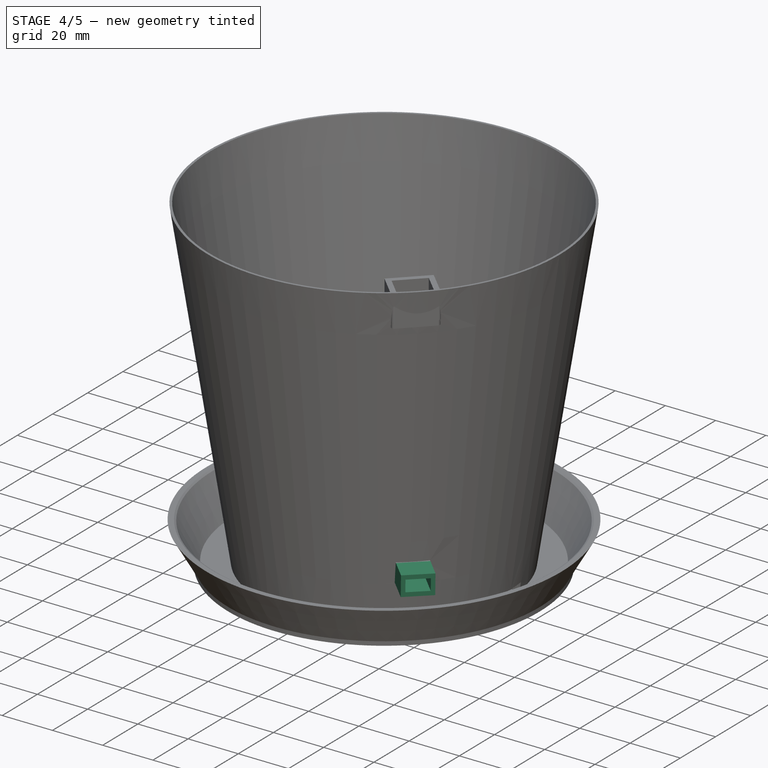
[diagram: stage 4 of 5 — iso view after this stage's code; geometry added in this stage tinted green]
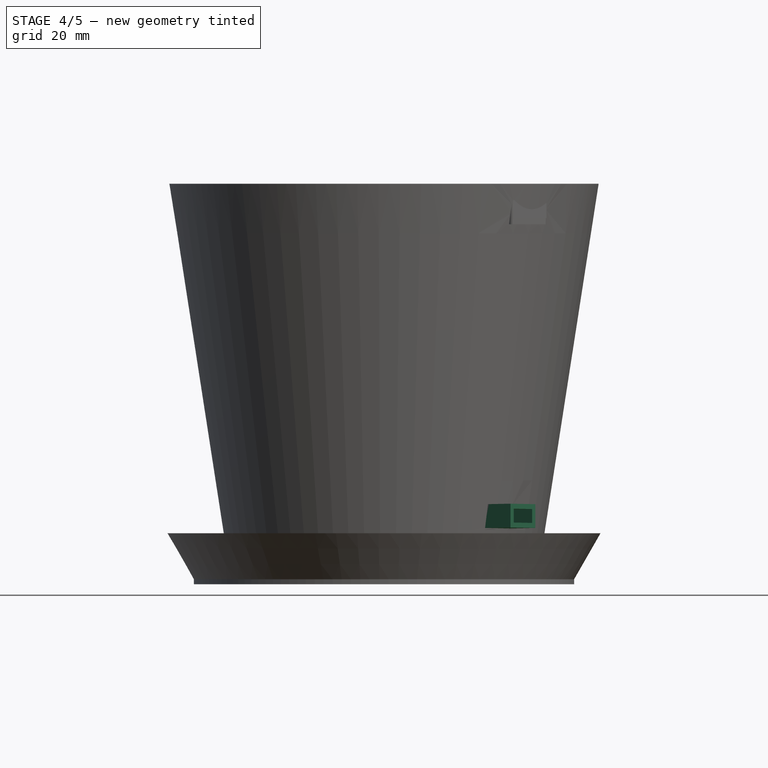
[diagram: stage 4 of 5 — front view after this stage's code; geometry added in this stage tinted green]
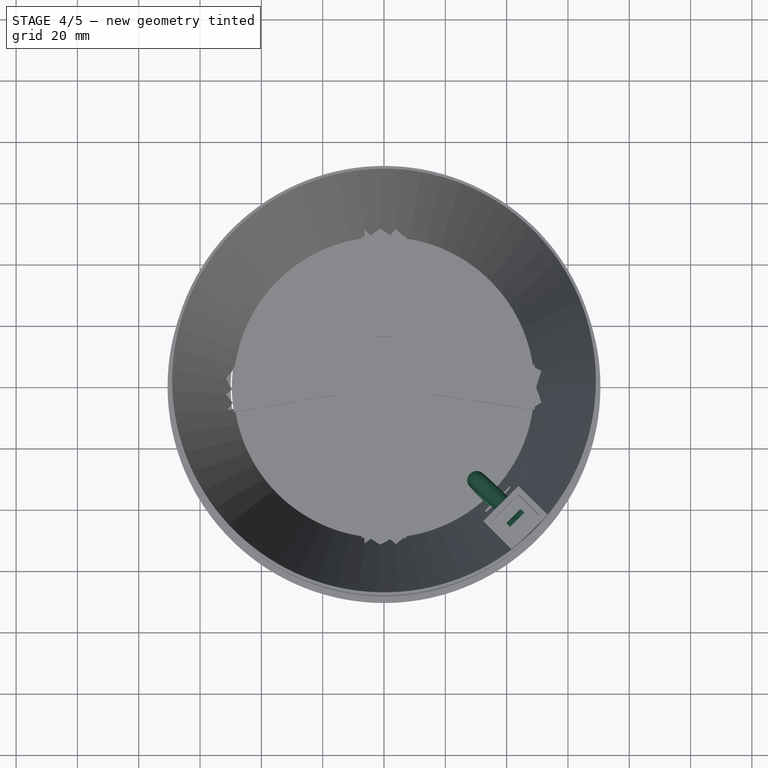
[diagram: stage 4 of 5 — top view after this stage's code; geometry added in this stage tinted green]
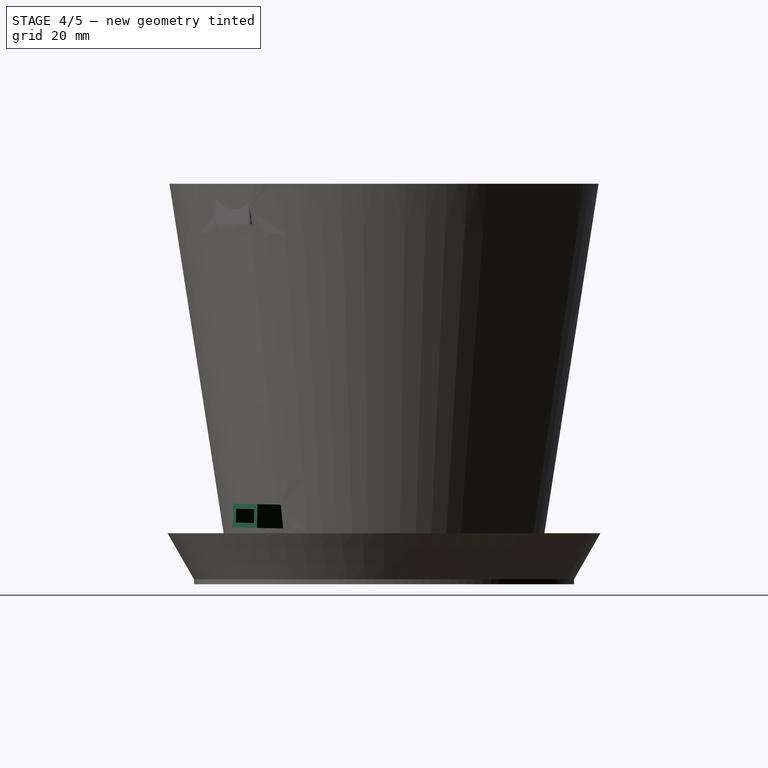
[diagram: stage 4 of 5 — right view after this stage's code; geometry added in this stage tinted green]
FEATURE [PartDesign::Fillet] Fillet003
  Base = -> Fillet002 [Edge57]
  BaseFeature = -> Fillet002
  Radius = 0.8
FEATURE [PartDesign::Fillet] Fillet004
  Base = -> Fillet003 [Edge11]
  BaseFeature = -> Fillet003
  Radius = 1
FEATURE [Sketcher::SketchObject] Sketch060
  ExternalGeometry = -> [ShapeBinder]
  MapMode = 5
  Placement = pos=(0,0,119.4) rot=(0,0,1;0rad)
  Support = -> [Fillet004]
  sketch-geometry (4):
    g0: LineSegment StartX=44.5296 StartY=-41.6561 StartZ=0 EndX=45.7751 EndY=-42.9017 EndZ=0
    g1: LineSegment StartX=45.7751 StartY=-42.9017 StartZ=0 EndX=41.1236 EndY=-47.5532 EndZ=0
    g2: LineSegment StartX=41.1236 StartY=-47.5532 StartZ=0 EndX=39.878 EndY=-46.3077 EndZ=0
    g3: LineSegment StartX=39.878 StartY=-46.3077 StartZ=0 EndX=44.5296 EndY=-41.6561 EndZ=0
  constraints (8):
    c: Coincident(g0,g1)
    c: Coincident(g1,g2)
    c: Coincident(g2,g3)
    c: Coincident(g3,g0)
    c: Parallel(g1,g-4)
    c: Parallel(g0,g-5)
    c: Parallel(g3,g-3)
    c: Parallel(g-7,g2)
FEATURE [PartDesign::Pocket] Pocket008
  BaseFeature = -> Fillet004
  Length = 5
  Length2 = 100
  Profile = -> Sketch060
  Type = 0
FEATURE [Sketcher::SketchObject] Sketch061
  AttachmentOffset = pos=(0,0,-9) rot=(0,0,1;0rad)
  ExternalGeometry = -> [Pocket008]
  MapMode = 5
  Placement = pos=(-0.414466,-0.414466,1e-15) rot=(0.862856,-0.357407,-0.357407;1.71777rad)
  Support = -> [Pocket008]
  sketch-geometry (11):
    g0-g5: Circle [constr] x6 (B-spline internal-alignment scaffolding for g6; pole/knot coordinates omitted)
    g6: BSplineCurve PolesCount=6 KnotsCount=4 Degree=3 IsPeriodic=0
    g7-g10: GeomPoint [constr] x4 (B-spline internal-alignment scaffolding for g6; pole/knot coordinates omitted)
  constraints (4):
    c: Radius(g0) = 10
    c: Equal(g0, g1-g5) x5
    c: InternalAlignment(g0-g5 -> g6) x6
    c: InternalAlignment(g7-g10 -> g6) x4
FEATURE [Sketcher::SketchObject] Sketch062
  AttachmentOffset = pos=(0,0,-15) rot=(0,0,1;0rad)
  MapMode = 5
  Placement = pos=(37.675,-38.2864,4e-16) rot=(0.865358,0.35437,0.35437;1.71491rad)
  Support = -> [Pocket008]
  sketch-geometry (2):
    g0: Circle CenterX=-0.117995 CenterY=22.3459 CenterZ=0 NormalX=0 NormalY=0 NormalZ=1 AngleXU=0 Radius=3
    g1: Circle CenterX=-0.117995 CenterY=22.3459 CenterZ=0 NormalX=0 NormalY=0 NormalZ=1 AngleXU=0 Radius=1.5
  constraints (3):
    c: Diameter(g0) = 6
    c: Coincident(g1,g0)
    c: Diameter(g1) = 3
FEATURE [PartDesign::AdditivePipe] AdditivePipe
  AuxilleryCurvelinear = true
  AuxillerySpineTangent = false
  BaseFeature = -> Pocket008
  Binormal = (0,0,0)
  Mode = 0
  Profile = -> Sketch062
  Spine = -> Sketch061
  SpineTangent = false
  Transformation = 0
  Transition = 0
FEATURE [Sketcher::SketchObject] Sketch063
  MapMode = 5
  Placement = pos=(38.1621,-38.7814,0.773676) rot=(0.863186,0.360551,0.35343;1.69763rad)
  Support = -> [AdditivePipe]
  sketch-geometry (12):
    g0: LineSegment StartX=-3.99127 StartY=23.655 StartZ=0 EndX=4.41709 EndY=23.655 EndZ=0
    g1: LineSegment StartX=4.41709 StartY=23.655 StartZ=0 EndX=4.41709 EndY=19.1422 EndZ=0
    g2: LineSegment StartX=4.41709 StartY=19.1422 StartZ=0 EndX=-3.99127 EndY=19.1422 EndZ=0
    g3: LineSegment StartX=-3.99127 StartY=19.1422 StartZ=0 EndX=-3.99127 EndY=23.655 EndZ=0
    g4: LineSegment StartX=-5.49127 StartY=25.2739 StartZ=0 EndX=5.91709 EndY=25.2739 EndZ=0
    g5: LineSegment StartX=5.91709 StartY=25.2739 StartZ=0 EndX=5.91709 EndY=17.5233 EndZ=0
    g6: LineSegment StartX=5.91709 StartY=17.5233 StartZ=0 EndX=-5.49127 EndY=17.5233 EndZ=0
    g7: LineSegment StartX=-5.49127 StartY=17.5233 StartZ=0 EndX=-5.49127 EndY=25.2739 EndZ=0
    g8: LineSegment [constr] StartX=4.41709 StartY=23.655 StartZ=0 EndX=5.91709 EndY=25.2739 EndZ=0
    g9: LineSegment [constr] StartX=-3.99127 StartY=23.655 StartZ=0 EndX=-5.49127 EndY=25.2739 EndZ=0
    g10: LineSegment [constr] StartX=-3.99127 StartY=19.1422 StartZ=0 EndX=-5.49127 EndY=17.5233 EndZ=0
    g11: LineSegment [constr] StartX=4.41709 StartY=19.1422 StartZ=0 EndX=5.91709 EndY=17.5233 EndZ=0
  constraints (27):
    c: Coincident(g0,g1)
    c: Coincident(g1,g2)
    c: Coincident(g2,g3)
    c: Coincident(g3,g0)
    c: Horizontal(g0)
    c: Horizontal(g2)
    c: Vertical(g1)
    c: Vertical(g3)
    c: Coincident(g4,g5)
    c: Coincident(g5,g6)
    c: Coincident(g6,g7)
    c: Coincident(g7,g4)
    c: Horizontal(g4)
    c: Horizontal(g6)
    c: Vertical(g5)
    c: DistanceX(g4,g0) = 1.5
    c: Coincident(g8,g0)
    c: Coincident(g8,g4)
    c: Coincident(g9,g0)
    c: Coincident(g9,g4)
    c: Coincident(g10,g2)
    c: Coincident(g10,g6)
    c: Coincident(g11,g1)
    c: Coincident(g11,g5)
    c: Equal(g8,g11)
    c: Equal(g11,g10)
    c: Equal(g10,g9)
FEATURE [PartDesign::Pad] Pad029
  BaseFeature = -> AdditivePipe
  Length = 10
  Length2 = 100
  Profile = -> Sketch063
  Type = 0
FEATURE [PartDesign::Pad] Pad030
  BaseFeature = -> Pad029
  Length = 2
  Length2 = 100
  Profile = -> Pad029 [Face49]
  Type = 0
FEATURE [Sketcher::SketchObject] Sketch064
  ExternalGeometry = -> [Pad030]
  MapMode = 5
  Placement = pos=(-16.6749,17.7117,87.7813) rot=(-0.732703,-0.677179,0.067636;0.270961rad)
  Support = -> [Pad030]
  sketch-geometry (2):
    g0: Circle CenterX=60.3342 CenterY=-64.5901 CenterZ=0 NormalX=0 NormalY=0 NormalZ=1 AngleXU=0 Radius=3
    g1: Circle CenterX=60.3342 CenterY=-64.5901 CenterZ=0 NormalX=0 NormalY=0 NormalZ=1 AngleXU=0 Radius=1.5
  constraints (4):
    c: Coincident(g0,g-3)
    c: Coincident(g1,g0)
    c: Equal(g0,g-3)
    c: Diameter(g1) = 3
FEATURE [Sketcher::SketchObject] Sketch065
  ExternalGeometry = -> [Pad030]
  MapMode = 5
  Placement = pos=(0,0,117.4) rot=(1,0,0;3.14159rad)
  Support = -> [Pad030]
  sketch-geometry (8):
    g0: LineSegment StartX=40.1485 StartY=53.7054 StartZ=0 EndX=32.3172 EndY=45.8741 EndZ=0
    g1: LineSegment StartX=32.3172 StartY=45.8741 StartZ=0 EndX=43.8431 EndY=34.3482 EndZ=0
    g2: LineSegment StartX=43.8431 StartY=34.3482 StartZ=0 EndX=51.9231 EndY=42.4283 EndZ=0
    g3: LineSegment StartX=51.9231 StartY=42.4283 StartZ=0 EndX=40.1485 EndY=53.7054 EndZ=0
    g4: LineSegment StartX=39.878 StartY=46.3077 StartZ=0 EndX=41.1236 EndY=47.5532 EndZ=0
    g5: LineSegment StartX=41.1236 StartY=47.5532 StartZ=0 EndX=45.7751 EndY=42.9017 EndZ=0
    g6: LineSegment StartX=45.7751 StartY=42.9017 StartZ=0 EndX=44.5295 EndY=41.5354 EndZ=0
    g7: LineSegment StartX=44.5295 StartY=41.5354 StartZ=0 EndX=39.878 EndY=46.3077 EndZ=0
  constraints (15):
    c: Coincident(g-7,g0)
    c: Coincident(g0,g-8)
    c: Coincident(g0,g1)
    c: Coincident(g1,g-9)
    c: Coincident(g1,g2)
    c: Coincident(g2,g-9)
    c: Coincident(g2,g3)
    c: Coincident(g3,g0)
    c: Coincident(g-5,g4)
    c: Coincident(g4,g-5)
    c: Coincident(g4,g5)
    c: Coincident(g5,g-6)
    c: Coincident(g5,g6)
    c: Coincident(g6,g7)
    c: Coincident(g7,g4)
FEATURE [PartDesign::AdditiveLoft] AdditiveLoft003
  BaseFeature = -> Pad030
  Closed = false
  Profile = -> Sketch064
  Ruled = false
  Sections = -> [Sketch065]
FEATURE [PartDesign::Body] Body
  Group = -> [Sketch,Pad,Sketch001,Sketch002,Sketch018,Sketch019,AdditiveLoft001,Sketch021,Sketch022,AdditiveLoft002,Pad017,Sketch026,Sketch027,Pocket,Sketch028,Pocket001,Sketch029,Pocket002,Sketch056,Pad026,Sketch057,Groove,ShapeBinder,Sketch058,Pad027,Sketch059,Pad028,Fillet,Fillet001,Fillet002,Fillet003,Fillet004,Sketch060,Pocket008,Sketch061,Sketch062,AdditivePipe,Sketch063,Pad029,Pad030,Sketch064,+2 more]
  Origin = -> Origin
  Tip = -> AdditiveLoft003
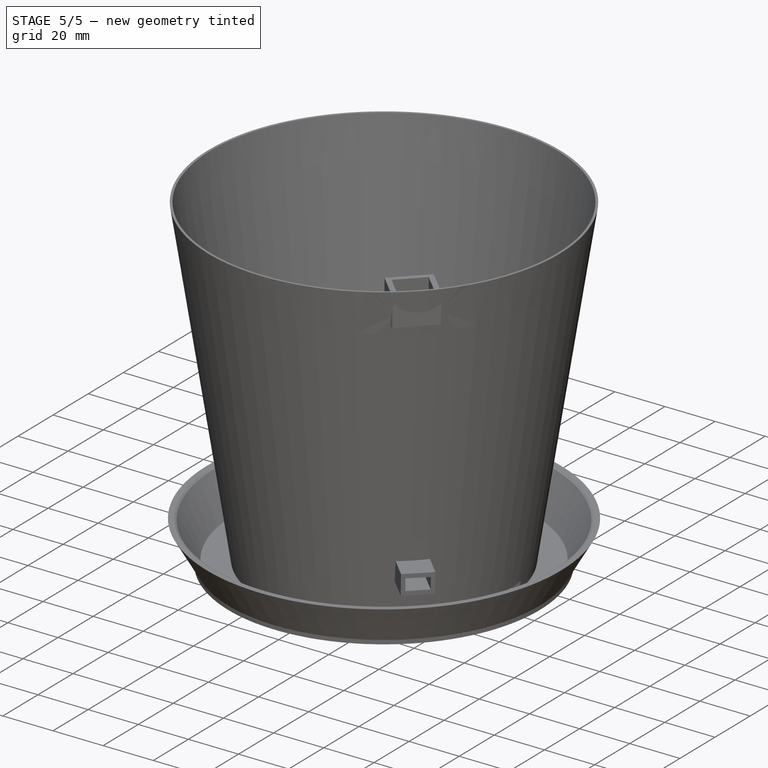
[diagram: stage 5 of 5 — iso view after this stage's code; geometry added in this stage tinted green]
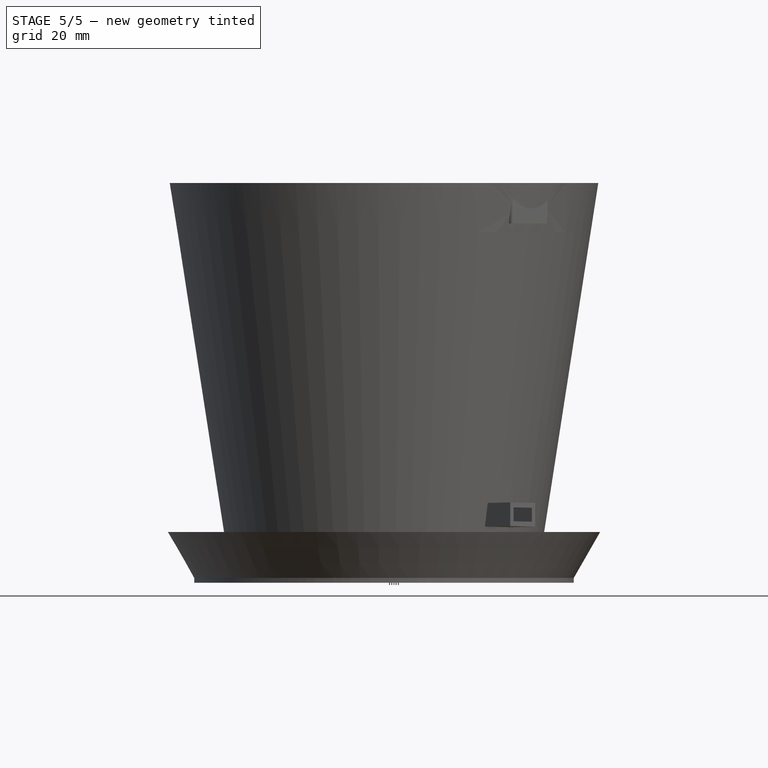
[diagram: stage 5 of 5 — front view after this stage's code; geometry added in this stage tinted green]
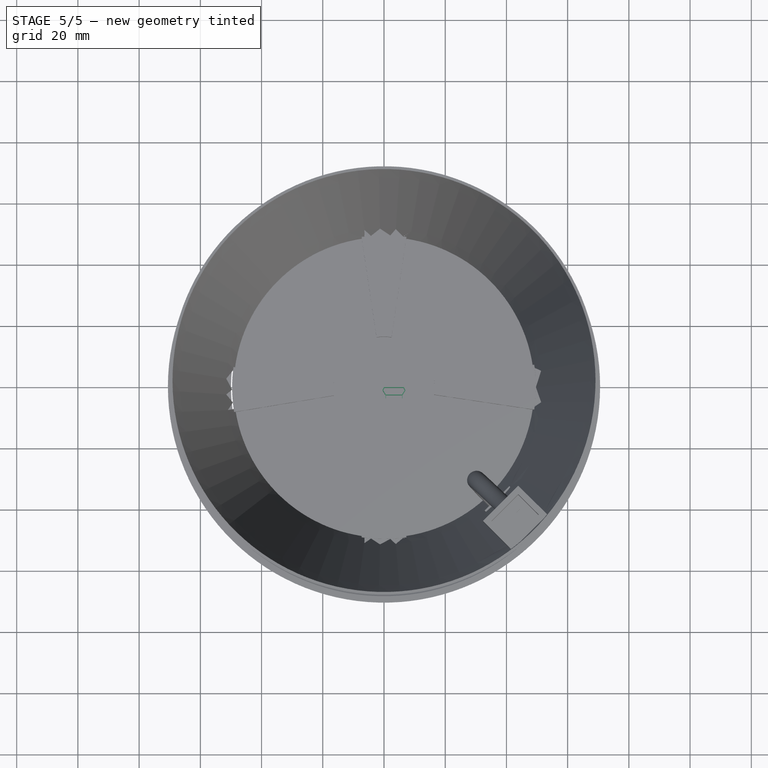
[diagram: stage 5 of 5 — top view after this stage's code; geometry added in this stage tinted green]
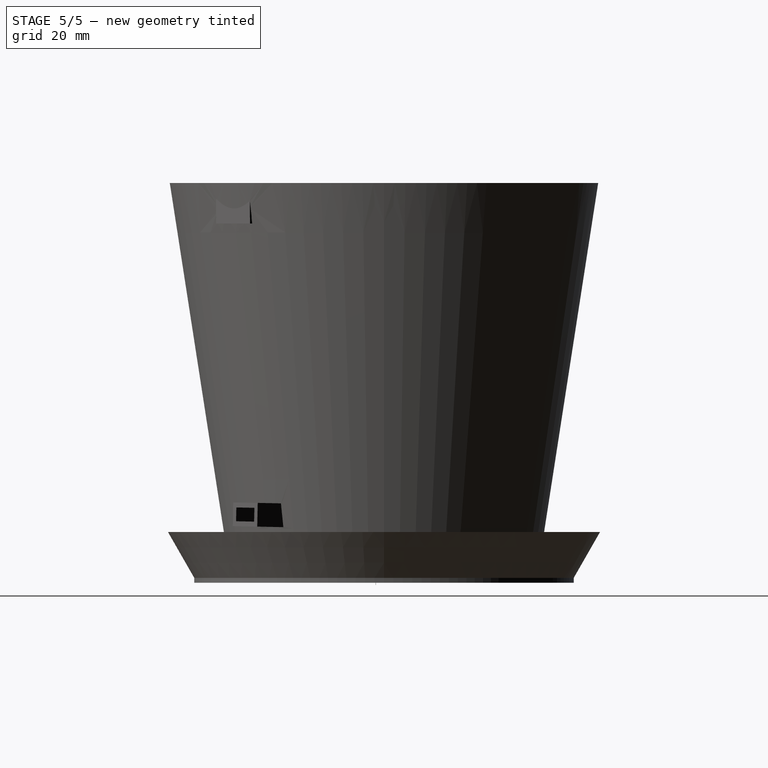
[diagram: stage 5 of 5 — right view after this stage's code; geometry added in this stage tinted green]
FEATURE [Sketcher::SketchObject] Sketch042
  MapMode = 5
  Support = -> [XY_Plane001]
  sketch-geometry (12):
    g0: LineSegment StartX=0 StartY=0 StartZ=0 EndX=6.5 EndY=0 EndZ=0
    g1: LineSegment [constr] StartX=-0.5 StartY=-1 StartZ=0 EndX=7 EndY=-1 EndZ=0
    g2: LineSegment StartX=0.5 StartY=-2.6 StartZ=0 EndX=6 EndY=-2.6 EndZ=0
    g3: LineSegment StartX=0 StartY=0 StartZ=0 EndX=-0.5 EndY=-1 EndZ=0
    g4: LineSegment StartX=-0.5 StartY=-1 StartZ=0 EndX=0.5 EndY=-2.6 EndZ=0
    g5: LineSegment StartX=6 StartY=-2.6 StartZ=0 EndX=7 EndY=-1 EndZ=0
    g6: LineSegment StartX=7 StartY=-1 StartZ=0 EndX=6.5 EndY=0 EndZ=0
    g7: GeomPoint X=0 Y=0 Z=0
    g8: LineSegment [constr] StartX=0 StartY=0 StartZ=0 EndX=0 EndY=-4.23763 EndZ=0
    g9: LineSegment [constr] StartX=6.5 StartY=0 StartZ=0 EndX=6.5 EndY=-3.6855 EndZ=0
    g10: LineSegment [constr] StartX=6 StartY=-2.6 StartZ=0 EndX=6.5 EndY=-2.6 EndZ=0
    g11: LineSegment [constr] StartX=0.5 StartY=-2.6 StartZ=0 EndX=0 EndY=-2.6 EndZ=0
  constraints (31):
    c: Coincident(g0,g-1)
    c: PointOnObject(g0,g-1)
    c: DistanceX(g0,g0) = 6.5
    c: Horizontal(g1)
    c: DistanceX(g1,g1) = 7.5
    c: DistanceY(g1,g-1) = 1
    c: Horizontal(g2)
    c: DistanceX(g2,g2) = 5.5
    c: DistanceY(g2,g-1) = 2.6
    c: Coincident(g3,g-1)
    c: Coincident(g3,g1)
    c: Coincident(g4,g1)
    c: Coincident(g4,g2)
    c: Coincident(g5,g2)
    c: Coincident(g5,g1)
    c: Coincident(g6,g1)
    c: Coincident(g6,g0)
    c: PointOnObject(g7,g0)
    c: Coincident(g8,g7)
    c: Vertical(g8)
    c: PointOnObject(g7,g3)
    c: Coincident(g9,g0)
    c: Vertical(g9)
    c: Coincident(g10,g2)
    c: PointOnObject(g10,g9)
    c: Horizontal(g10)
    c: Coincident(g11,g2)
    c: Horizontal(g11)
    c: Equal(g11,g10)
    c: Equal(g3,g6)
    c: Equal(g5,g4)
FEATURE [PartDesign::Pad] Pad020
  Length = 6
  Length2 = 100
  Profile = -> Sketch042
  Type = 0
FEATURE [PartDesign::Thickness] Thickness
  Base = -> Pad020 [Face8]
  BaseFeature = -> Pad020
  Intersection = false
  Join = 0
  Mode = 0
  Reversed = true
  Value = 0.2
FEATURE [Sketcher::SketchObject] Sketch043
  ExternalGeometry = -> [Thickness]
  MapMode = 5
  Placement = pos=(0,-2.6,0) rot=(1,0,0;1.5708rad)
  Support = -> [Thickness]
  sketch-geometry (8):
    g0: LineSegment StartX=5.9 StartY=3.5 StartZ=0 EndX=6 EndY=3.5 EndZ=0
    g1: LineSegment StartX=6 StartY=3.5 StartZ=0 EndX=6 EndY=2.5 EndZ=0
    g2: LineSegment StartX=6 StartY=2.5 StartZ=0 EndX=5.9 EndY=2.5 EndZ=0
    g3: LineSegment StartX=5.9 StartY=2.5 StartZ=0 EndX=5.9 EndY=3.5 EndZ=0
    g4: LineSegment StartX=0.5 StartY=3.5 StartZ=0 EndX=0.6 EndY=3.5 EndZ=0
    g5: LineSegment StartX=0.6 StartY=3.5 StartZ=0 EndX=0.6 EndY=2.5 EndZ=0
    g6: LineSegment StartX=0.6 StartY=2.5 StartZ=0 EndX=0.5 EndY=2.5 EndZ=0
    g7: LineSegment StartX=0.5 StartY=2.5 StartZ=0 EndX=0.5 EndY=3.5 EndZ=0
  constraints (24):
    c: Coincident(g0,g1)
    c: Coincident(g1,g2)
    c: Coincident(g2,g3)
    c: Coincident(g3,g0)
    c: Horizontal(g0)
    c: Horizontal(g2)
    c: Vertical(g1)
    c: Vertical(g3)
    c: Coincident(g4,g5)
    c: Coincident(g5,g6)
    c: Coincident(g6,g7)
    c: Coincident(g7,g4)
    c: Horizontal(g4)
    c: Horizontal(g6)
    c: Vertical(g5)
    c: Vertical(g7)
    c: PointOnObject(g0,g-4)
    c: PointOnObject(g4,g-5)
    c: DistanceY(g4,g-5) = 2.5
    c: DistanceY(g0,g-4) = 2.5
    c: DistanceY(g5,g5) = 1
    c: DistanceY(g3,g3) = 1
    c: DistanceX(g2,g2) = 0.1
    c: Equal(g2,g6)
FEATURE [PartDesign::Pad] Pad001
  BaseFeature = -> Thickness
  Length = 1
  Length2 = 100
  Profile = -> Sketch043
  Type = 0
FEATURE [Sketcher::SketchObject] Sketch044
  ExternalGeometry = -> [Pad001]
  MapMode = 5
  Placement = pos=(0,-2.6,0) rot=(1,0,0;1.5708rad)
  Support = -> [Pad001]
  sketch-geometry (10):
    g0: LineSegment StartX=1.1 StartY=0.5 StartZ=0 EndX=1.6 EndY=0.5 EndZ=0
    g1: LineSegment StartX=1.6 StartY=0.5 StartZ=0 EndX=1.6 EndY=0 EndZ=0
    g2: LineSegment StartX=1.6 StartY=0 StartZ=0 EndX=1.1 EndY=0 EndZ=0
    g3: LineSegment StartX=1.1 StartY=0 StartZ=0 EndX=1.1 EndY=0.5 EndZ=0
    g4: LineSegment StartX=4.9 StartY=0.5 StartZ=0 EndX=5.4 EndY=0.5 EndZ=0
    g5: LineSegment StartX=5.4 StartY=0.5 StartZ=0 EndX=5.4 EndY=0 EndZ=0
    g6: LineSegment StartX=5.4 StartY=0 StartZ=0 EndX=4.9 EndY=0 EndZ=0
    g7: LineSegment StartX=4.9 StartY=0 StartZ=0 EndX=4.9 EndY=0.5 EndZ=0
    g8: LineSegment [constr] StartX=5.4 StartY=0 StartZ=0 EndX=6 EndY=0 EndZ=0
    g9: LineSegment [constr] StartX=1.1 StartY=0 StartZ=0 EndX=0.5 EndY=0 EndZ=0
  constraints (30):
    c: Coincident(g0,g1)
    c: Coincident(g1,g2)
    c: Coincident(g2,g3)
    c: Coincident(g3,g0)
    c: Horizontal(g0)
    c: Horizontal(g2)
    c: Vertical(g1)
    c: Vertical(g3)
    c: Coincident(g4,g5)
    c: Coincident(g5,g6)
    c: Coincident(g6,g7)
    c: Coincident(g7,g4)
    c: Horizontal(g4)
    c: Horizontal(g6)
    c: Vertical(g5)
    c: Vertical(g7)
    c: DistanceX(g0,g4) = 3.3
    c: DistanceX(g4,g4) = 0.5
    c: DistanceY(g5,g5) = 0.5
    c: Equal(g5,g1)
    c: Equal(g0,g4)
    c: Coincident(g8,g5)
    c: PointOnObject(g8,g-3)
    c: Coincident(g9,g2)
    c: PointOnObject(g9,g-4)
    c: Horizontal(g8)
    c: Horizontal(g9)
    c: Equal(g8,g9)
    c: PointOnObject(g1,g-1)
    c: PointOnObject(g5,g-1)
FEATURE [PartDesign::Pad] Pad002
  BaseFeature = -> Pad001
  Length = 0.4
  Length2 = 100
  Profile = -> Sketch044
  Type = 0
FEATURE [Sketcher::SketchObject] Sketch003
  ExternalGeometry = -> [Pad002]
  MapMode = 5
  Placement = pos=(0,-2.6,0) rot=(1,0,0;1.5708rad)
  Support = -> [Pad002]
  sketch-geometry (26):
    g0: LineSegment StartX=1.65 StartY=0.65 StartZ=0 EndX=1.97 EndY=0.65 EndZ=0
    g1: LineSegment StartX=1.97 StartY=0.65 StartZ=0 EndX=1.97 EndY=-0.7 EndZ=0
    g2: LineSegment StartX=1.97 StartY=-0.7 StartZ=0 EndX=1.65 EndY=-0.7 EndZ=0
    g3: LineSegment StartX=1.65 StartY=-0.7 StartZ=0 EndX=1.65 EndY=0.65 EndZ=0
    g4: LineSegment StartX=2.37 StartY=0.65 StartZ=0 EndX=2.69 EndY=0.65 EndZ=0
    g5: LineSegment StartX=2.69 StartY=0.65 StartZ=0 EndX=2.69 EndY=-0.7 EndZ=0
    g6: LineSegment StartX=2.69 StartY=-0.7 StartZ=0 EndX=2.37 EndY=-0.7 EndZ=0
    g7: LineSegment StartX=2.37 StartY=-0.7 StartZ=0 EndX=2.37 EndY=0.65 EndZ=0
    g8: LineSegment StartX=3.09 StartY=0.65 StartZ=0 EndX=3.41 EndY=0.65 EndZ=0
    g9: LineSegment StartX=3.41 StartY=0.65 StartZ=0 EndX=3.41 EndY=-0.7 EndZ=0
    g10: LineSegment StartX=3.41 StartY=-0.7 StartZ=0 EndX=3.09 EndY=-0.7 EndZ=0
    g11: LineSegment StartX=3.09 StartY=-0.7 StartZ=0 EndX=3.09 EndY=0.65 EndZ=0
    g12: LineSegment StartX=3.81 StartY=0.65 StartZ=0 EndX=4.13 EndY=0.65 EndZ=0
    g13: LineSegment StartX=4.13 StartY=0.65 StartZ=0 EndX=4.13 EndY=-0.7 EndZ=0
    g14: LineSegment StartX=4.13 StartY=-0.7 StartZ=0 EndX=3.81 EndY=-0.7 EndZ=0
    g15: LineSegment StartX=3.81 StartY=-0.7 StartZ=0 EndX=3.81 EndY=0.65 EndZ=0
    g16: LineSegment StartX=4.53 StartY=0.65 StartZ=0 EndX=4.85 EndY=0.65 EndZ=0
    g17: LineSegment StartX=4.85 StartY=0.65 StartZ=0 EndX=4.85 EndY=-0.7 EndZ=0
    g18: LineSegment StartX=4.85 StartY=-0.7 StartZ=0 EndX=4.53 EndY=-0.7 EndZ=0
    g19: LineSegment StartX=4.53 StartY=-0.7 StartZ=0 EndX=4.53 EndY=0.65 EndZ=0
    g20: LineSegment [constr] StartX=1.97 StartY=0.65 StartZ=0 EndX=2.37 EndY=0.65 EndZ=0
    g21: LineSegment [constr] StartX=2.69 StartY=0.65 StartZ=0 EndX=3.09 EndY=0.65 EndZ=0
    g22: LineSegment [constr] StartX=3.41 StartY=0.65 StartZ=0 EndX=3.81 EndY=0.65 EndZ=0
    g23: LineSegment [constr] StartX=4.13 StartY=0.65 StartZ=0 EndX=4.53 EndY=0.65 EndZ=0
    g24: LineSegment [constr] StartX=1.65 StartY=0.65 StartZ=0 EndX=0.5 EndY=0.65 EndZ=0
    g25: LineSegment [constr] StartX=4.85 StartY=0.65 StartZ=0 EndX=6 EndY=0.65 EndZ=0
  constraints (74):
    c: Coincident(g0,g1)
    c: Coincident(g1,g2)
    c: Coincident(g2,g3)
    c: Coincident(g3,g0)
    c: Horizontal(g0)
    c: Horizontal(g2)
    c: Vertical(g1)
    c: Vertical(g3)
    c: Coincident(g4,g5)
    c: Coincident(g5,g6)
    c: Coincident(g6,g7)
    c: Coincident(g7,g4)
    c: Horizontal(g4)
    c: Horizontal(g6)
    c: Vertical(g5)
    c: Vertical(g7)
    c: Coincident(g8,g9)
    c: Coincident(g9,g10)
    c: Coincident(g10,g11)
    c: Coincident(g11,g8)
    c: Horizontal(g8)
    c: Horizontal(g10)
    c: Vertical(g9)
    c: Vertical(g11)
    c: Coincident(g12,g13)
    c: Coincident(g13,g14)
    c: Coincident(g14,g15)
    c: Coincident(g15,g12)
    c: Horizontal(g12)
    c: Horizontal(g14)
    c: Vertical(g13)
    c: Vertical(g15)
    c: Coincident(g16,g17)
    c: Coincident(g17,g18)
    c: Coincident(g18,g19)
    c: Coincident(g19,g16)
    c: Horizontal(g16)
    c: Horizontal(g18)
    c: Vertical(g17)
    c: Vertical(g19)
    c: DistanceX(g0,g0) = 0.32
    c: Equal(g0,g4)
    c: Equal(g4,g8)
    c: Equal(g8,g12)
    c: Equal(g12,g16)
    c: Equal(g17,g13)
    c: Equal(g13,g9)
    c: Equal(g9,g5)
    c: Equal(g5,g1)
    c: Coincident(g20,g0)
    c: Coincident(g20,g4)
    c: Coincident(g21,g4)
    c: Coincident(g21,g8)
    c: Coincident(g22,g8)
    c: Coincident(g23,g12)
    c: Coincident(g23,g16)
    c: Horizontal(g20)
    c: Horizontal(g21)
    c: Horizontal(g22)
    c: Horizontal(g23)
    c: Coincident(g22,g12)
    c: DistanceX(g2,g17) = 3.2
    c: Equal(g20,g21)
    c: Equal(g21,g22)
    c: Equal(g22,g23)
    c: Coincident(g24,g0)
    c: PointOnObject(g24,g-3)
    c: Horizontal(g24)
    c: Coincident(g25,g16)
    c: PointOnObject(g25,g-4)
    c: Horizontal(g25)
    c: Equal(g25,g24)
    c: DistanceY(g17,g17) = 1.35
    c: DistanceY(g17,g-4) = 0.7
FEATURE [PartDesign::Pad] Pad003
  BaseFeature = -> Pad002
  Length = 0.1
  Length2 = 100
  Profile = -> Sketch003
  Type = 0
FEATURE [PartDesign::Fillet] Fillet001
  Base = -> Fillet [Edge16]
  BaseFeature = -> Fillet
  Radius = 1
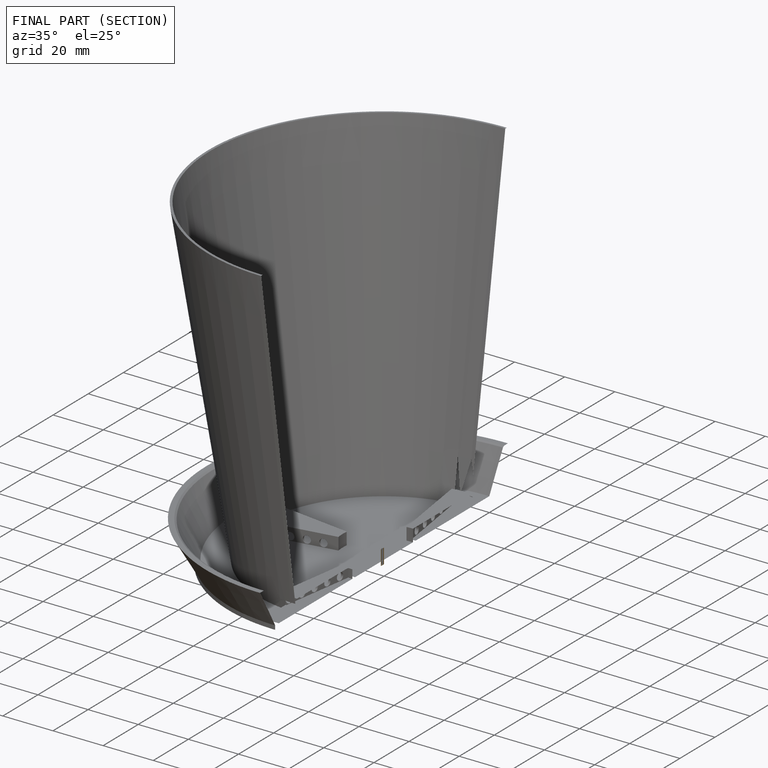
[diagram: finished part — half-section view (interior)]
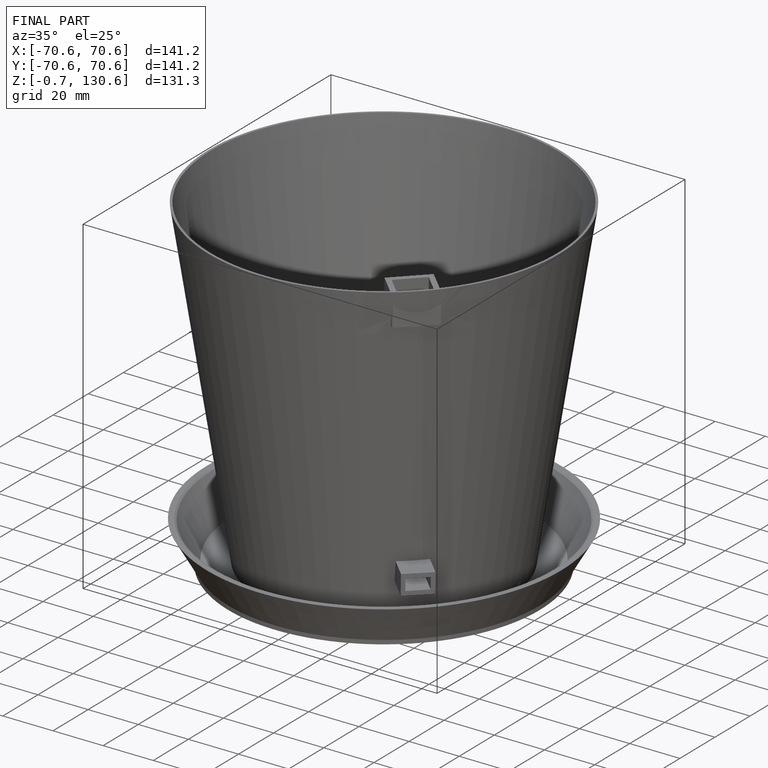
[diagram: finished part — iso view with bounding-box wireframe]
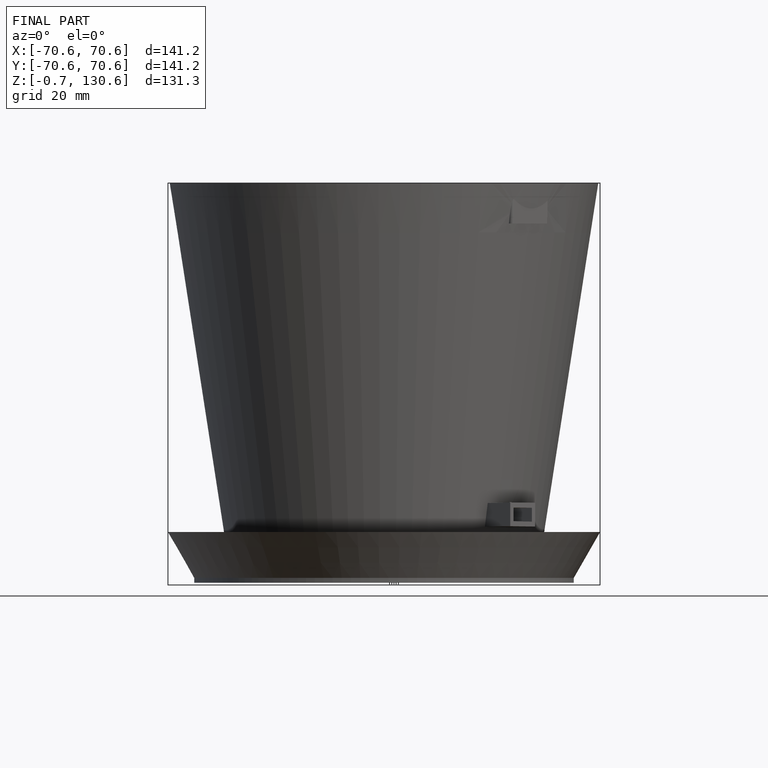
[diagram: finished part — front view with bounding-box wireframe]
